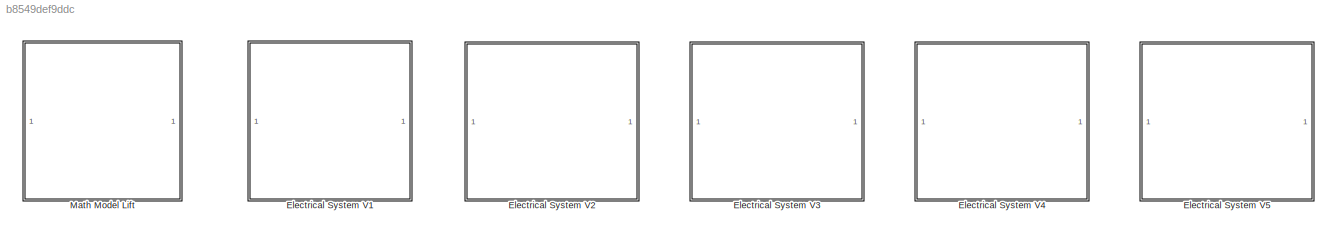
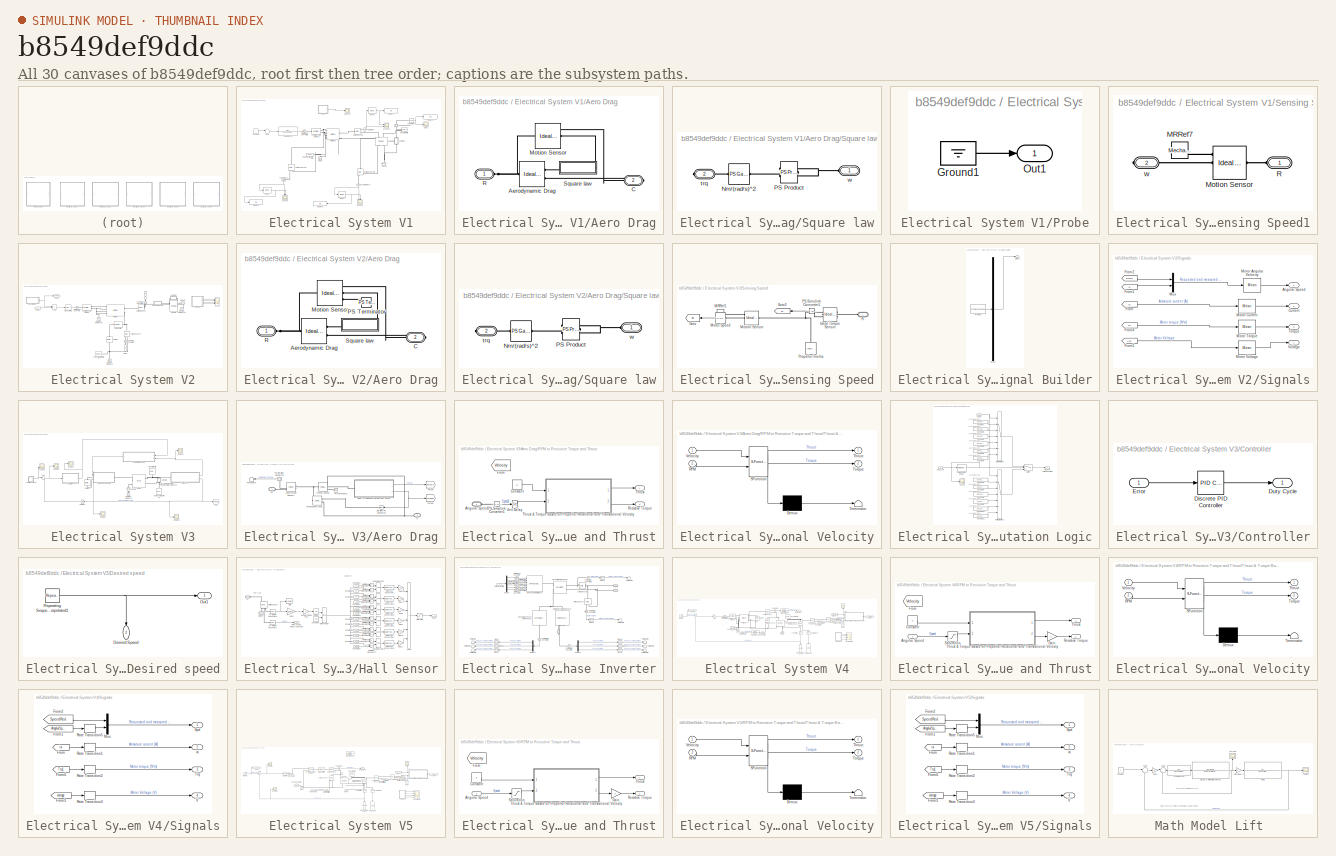
[diagram: thumbnail index - all 30 canvases of the model, root first then tree order]
MODEL slx_b8549def9ddc
KIND model
CONFIG AbsTol = auto
CONFIG EnableMultiTasking = off
CONFIG FixedStep = auto
CONFIG MaxStep = auto
CONFIG MinStep = auto
CONFIG RelTol = 1e-3
CONFIG SampleTimeConstraint = Unconstrained
CONFIG Solver = ode23t
CONFIG SolverName = ode23t
CONFIG StartTime = 0.0
CONFIG StopTime = 10
BLOCK [SubSystem] Electrical System V1
  Commented = on
  Ports = []
BLOCK [SubSystem] Electrical System V1/Aero Drag
  NameLocation = right
  Ports = [0, 0, 0, 0, 0, 1, 1]
BLOCK [Reference] Electrical System V1/Aero Drag/Aerodynamic Drag  REF=fl_lib/Mechanical/Mechanical Sources/Ideal Torque Source
  Ports = [0, 0, 0, 0, 0, 1, 2]
  SourceBlock = fl_lib/Mechanical/Mechanical Sources/Ideal Torque Source
  SourceType = Ideal Torque Source
BLOCK [PMIOPort] Electrical System V1/Aero Drag/C
  NameLocation = top
  Port = 2
  Side = Right
BLOCK [Reference] Electrical System V1/Aero Drag/Motion Sensor  REF=fl_lib/Mechanical/Mechanical Sensors/Ideal Rotational
Motion Sensor
  NameLocation = top
  Ports = [0, 0, 0, 0, 0, 1, 3]
  SourceBlock = fl_lib/Mechanical/Mechanical Sensors/Ideal Rotational\nMotion Sensor
  SourceType = Ideal Rotational\nMotion Sensor
BLOCK [PMIOPort] Electrical System V1/Aero Drag/R
  NameLocation = top
  Side = Left
BLOCK [SubSystem] Electrical System V1/Aero Drag/Square law
  NameLocation = top
  Ports = [0, 0, 0, 0, 0, 1, 1]
BLOCK [Reference] Electrical System V1/Aero Drag/Square law/Nm//(rad//s)^2  REF=fl_ps_legacy_lib/Legacy Physical
Signals/Functions/PS Gain
  NameLocation = top
  Ports = [0, 0, 0, 0, 0, 1, 1]
  SourceBlock = fl_ps_legacy_lib/Legacy Physical\nSignals/Functions/PS Gain
  SourceType = PS Gain
BLOCK [Reference] Electrical System V1/Aero Drag/Square law/PS Product  REF=fl_ps_legacy_lib/Legacy Physical
Signals/Functions/PS Product
  NameLocation = top
  Ports = [0, 0, 0, 0, 0, 2, 1]
  SourceBlock = fl_ps_legacy_lib/Legacy Physical\nSignals/Functions/PS Product
  SourceType = PS Product
BLOCK [PMIOPort] Electrical System V1/Aero Drag/Square law/trq
  Port = 2
  Side = Right
BLOCK [PMIOPort] Electrical System V1/Aero Drag/Square law/w
  NameLocation = top
  Side = Left
BLOCK [Constant] Electrical System V1/Constant4
  Value = 7
BLOCK [Reference] Electrical System V1/Controlled PWM Voltage3  REF=ee_lib/Integrated Circuits/Controlled PWM
Voltage
  Ports = [0, 0, 0, 0, 0, 1, 2]
  SourceBlock = ee_lib/Integrated Circuits/Controlled PWM\nVoltage
  SourceType = Controlled PWM\nVoltage
BLOCK [Reference] Electrical System V1/Current Sensor3  REF=fl_lib/Electrical/Electrical Sensors/Current Sensor
  NameLocation = top
  Ports = [0, 0, 0, 0, 0, 1, 2]
  SourceBlock = fl_lib/Electrical/Electrical Sensors/Current Sensor
  SourceType = Current Sensor
BLOCK [Reference] Electrical System V1/DC Motor3  REF=ee_lib/Electromechanical/Brushed Motors/DC Motor
  NameLocation = left
  Ports = [0, 0, 0, 0, 0, 2, 2]
  SourceBlock = ee_lib/Electromechanical/Brushed Motors/DC Motor
  SourceType = DC Motor
BLOCK [Display] Electrical System V1/Display5
  Decimation = 1
  Ports = [1]
BLOCK [Display] Electrical System V1/Display6
  Decimation = 1
  NameLocation = top
  Ports = [1]
BLOCK [Display] Electrical System V1/Display7
  Decimation = 1
  Ports = [1]
BLOCK [Display] Electrical System V1/Display8
  Decimation = 1
  Ports = [1]
BLOCK [Reference] Electrical System V1/ERef2  REF=fl_lib/Electrical/Electrical Elements/Electrical Reference
  NameLocation = left
  Ports = [0, 0, 0, 0, 0, 1]
  SourceBlock = fl_lib/Electrical/Electrical Elements/Electrical Reference
  SourceType = Electrical Reference
BLOCK [Reference] Electrical System V1/H-Bridge3  REF=ee_lib/Semiconductors &
Converters/Converters/H-Bridge
  Ports = [0, 0, 0, 0, 0, 4, 4]
  SourceBlock = ee_lib/Semiconductors &\nConverters/Converters/H-Bridge
  SourceType = H-Bridge
BLOCK [Reference] Electrical System V1/MRRef2  REF=fl_lib/Mechanical/Rotational Elements/Mechanical
Rotational Reference
  NameLocation = right
  Ports = [0, 0, 0, 0, 0, 1]
  SourceBlock = fl_lib/Mechanical/Rotational Elements/Mechanical\nRotational Reference
  SourceType = Mechanical\nRotational Reference
BLOCK [Reference] Electrical System V1/Mean3  REF=powerlib_meascontrol/Measurements/Mean
  Ports = [1, 1]
  SourceBlock = powerlib_meascontrol/Measurements/Mean
  SourceType = Mean
BLOCK [Reference] Electrical System V1/Mean4  REF=powerlib_meascontrol/Measurements/Mean
  Ports = [1, 1]
  SourceBlock = powerlib_meascontrol/Measurements/Mean
  SourceType = Mean
BLOCK [Reference] Electrical System V1/Mean5  REF=powerlib_meascontrol/Measurements/Mean
  Ports = [1, 1]
  SourceBlock = powerlib_meascontrol/Measurements/Mean
  SourceType = Mean
BLOCK [Reference] Electrical System V1/PS-Simulink10  REF=nesl_utility/PS-Simulink
Converter
  NameLocation = left
  Ports = [0, 1, 0, 0, 0, 1]
  SourceBlock = nesl_utility/PS-Simulink\nConverter
  SourceType = PS-Simulink\nConverter
BLOCK [Reference] Electrical System V1/PS-Simulink11  REF=nesl_utility/PS-Simulink
Converter
  NameLocation = left
  Ports = [0, 1, 0, 0, 0, 1]
  SourceBlock = nesl_utility/PS-Simulink\nConverter
  SourceType = PS-Simulink\nConverter
BLOCK [Reference] Electrical System V1/PS-Simulink8  REF=nesl_utility/PS-Simulink
Converter
  Ports = [0, 1, 0, 0, 0, 1]
  SourceBlock = nesl_utility/PS-Simulink\nConverter
  SourceType = PS-Simulink\nConverter
BLOCK [Reference] Electrical System V1/PS-Simulink9  REF=nesl_utility/PS-Simulink
Converter
  Ports = [0, 1, 0, 0, 0, 1]
  SourceBlock = nesl_utility/PS-Simulink\nConverter
  SourceType = PS-Simulink\nConverter
BLOCK [SubSystem] Electrical System V1/Probe
  Description = Replaced Block
  Ports = [0, 1]
BLOCK [Ground] Electrical System V1/Probe/Ground1
BLOCK [Outport] Electrical System V1/Probe/Out1
BLOCK [Reference] Electrical System V1/Propeller Inertia  REF=fl_lib/Mechanical/Rotational Elements/Inertia
  NameLocation = top
  Ports = [0, 0, 0, 0, 0, 1]
  SourceBlock = fl_lib/Mechanical/Rotational Elements/Inertia
  SourceType = Inertia
BLOCK [Scope] Electrical System V1/Scope10
  Floating = off
  NumInputPorts = 2
  Ports = [2]
  ScopeSpecificationString = Simulink.scopes.TimeScopeBlockCfg('CurrentConfiguration', extmgr.ConfigurationSet(extmgr.Configuration('Core','General UI',true),extmgr.Configuration('Core','Source UI',true),extmgr.Configuration('Sources','WiredSimulink',true,'DataLoggingVariableName','ScopeData9'),extmgr.Configuration('Visuals','Time Domain',true,'SerializedDisplays',{struct('MinYLimReal','-12.84725','MaxYLimReal','115.625','YLa...<+1425ch>
BLOCK [Scope] Electrical System V1/Scope11
  Floating = off
  NumInputPorts = 1
  Ports = [1]
  ScopeSpecificationString = Simulink.scopes.TimeScopeBlockCfg('CurrentConfiguration', extmgr.ConfigurationSet(extmgr.Configuration('Core','General UI',true),extmgr.Configuration('Core','Source UI',true),extmgr.Configuration('Sources','WiredSimulink',true,'DataLoggingVariableName','ScopeData12'),extmgr.Configuration('Visuals','Time Domain',true,'SerializedDisplays',{struct('MinYLimReal','5.199959','MaxYLimReal','5.200005','YL...<+1464ch>
BLOCK [Scope] Electrical System V1/Scope8
  Floating = off
  NameLocation = left
  NumInputPorts = 2
  Ports = [2]
  ScopeSpecificationString = Simulink.scopes.TimeScopeBlockCfg('CurrentConfiguration', extmgr.ConfigurationSet(extmgr.Configuration('Core','General UI',true),extmgr.Configuration('Core','Source UI',true),extmgr.Configuration('Sources','WiredSimulink',true,'DataLoggingVariableName','ScopeData10'),extmgr.Configuration('Visuals','Time Domain',true,'SerializedDisplays',{struct('MinYLimReal','-1.6962','MaxYLimReal','15.26577','YLa...<+1459ch>
BLOCK [Scope] Electrical System V1/Scope9
  Floating = off
  NameLocation = left
  NumInputPorts = 2
  Ports = [2]
  ScopeSpecificationString = Simulink.scopes.TimeScopeBlockCfg('CurrentConfiguration', extmgr.ConfigurationSet(extmgr.Configuration('Core','General UI',true),extmgr.Configuration('Core','Source UI',true),extmgr.Configuration('Sources','WiredSimulink',true,'DataLoggingVariableName','ScopeData11'),extmgr.Configuration('Visuals','Time Domain',true,'SerializedDisplays',{struct('MinYLimReal','-1.85','MaxYLimReal','16.65','YLabelRe...<+1442ch>
BLOCK [SubSystem] Electrical System V1/Sensing Speed1
  NameLocation = right
  Ports = [0, 0, 0, 0, 0, 1, 1]
BLOCK [Reference] Electrical System V1/Sensing Speed1/MRRef7  REF=fl_lib/Mechanical/Rotational Elements/Mechanical
Rotational Reference
  Ports = [0, 0, 0, 0, 0, 1]
  SourceBlock = fl_lib/Mechanical/Rotational Elements/Mechanical\nRotational Reference
  SourceType = Mechanical\nRotational Reference
BLOCK [Reference] Electrical System V1/Sensing Speed1/Motion Sensor  REF=fl_lib/Mechanical/Mechanical Sensors/Ideal Rotational
Motion Sensor
  Ports = [0, 0, 0, 0, 0, 1, 3]
  SourceBlock = fl_lib/Mechanical/Mechanical Sensors/Ideal Rotational\nMotion Sensor
  SourceType = Ideal Rotational\nMotion Sensor
BLOCK [PMIOPort] Electrical System V1/Sensing Speed1/R
  Side = Left
BLOCK [PMIOPort] Electrical System V1/Sensing Speed1/w
  NameLocation = top
  Port = 2
  Side = Right
BLOCK [Reference] Electrical System V1/Simulink-PS Converter2  REF=nesl_utility/Simulink-PS
Converter
  Ports = [1, 0, 0, 0, 0, 0, 1]
  SourceBlock = nesl_utility/Simulink-PS\nConverter
  SourceType = Simulink-PS\nConverter
BLOCK [Reference] Electrical System V1/Solver Configuration3  REF=nesl_utility/Solver
Configuration
  Ports = [0, 0, 0, 0, 0, 0, 1]
  SourceBlock = nesl_utility/Solver\nConfiguration
  SourceType = Solver\nConfiguration
BLOCK [Sum] Electrical System V1/Sum4
  Inputs = |+-
  Ports = [2, 1]
BLOCK [TransferFcn] Electrical System V1/Transfer Fcn1
  Denominator = [1 2*a*w0/J]
  Numerator = [Ke]
BLOCK [Reference] Electrical System V1/Voltage Sensor5  REF=fl_lib/Electrical/Electrical Sensors/Voltage Sensor
  NameLocation = right
  Ports = [0, 0, 0, 0, 0, 1, 2]
  SourceBlock = fl_lib/Electrical/Electrical Sensors/Voltage Sensor
  SourceType = Voltage Sensor
BLOCK [Reference] Electrical System V1/Voltage Sensor6  REF=fl_lib/Electrical/Electrical Sensors/Voltage Sensor
  NameLocation = right
  Ports = [0, 0, 0, 0, 0, 1, 2]
  SourceBlock = fl_lib/Electrical/Electrical Sensors/Voltage Sensor
  SourceType = Voltage Sensor
BLOCK [Scope] Electrical System V1/rad//s
  Floating = off
  NumInputPorts = 1
  Ports = [1]
  ScopeSpecificationString = Simulink.scopes.TimeScopeBlockCfg('CurrentConfiguration', extmgr.ConfigurationSet(extmgr.Configuration('Core','General UI',true),extmgr.Configuration('Core','Source UI',true),extmgr.Configuration('Sources','WiredSimulink',true,'DataLogging',true,'DataLoggingVariableName','ScopeData8','DataLoggingSaveFormat','StructureWithTime','DataLoggingDecimation','1','DataLoggingDecimateData',true),extmgr.Conf...<+1736ch>
BLOCK [SubSystem] Electrical System V2
  Commented = on
  Ports = []
BLOCK [Sum] Electrical System V2/Add
  IconShape = rectangular
  Inputs = +-
  Ports = [2, 1]
BLOCK [SubSystem] Electrical System V2/Aero Drag
  NameLocation = top
  Ports = [0, 0, 0, 0, 0, 1, 1]
BLOCK [Reference] Electrical System V2/Aero Drag/Aerodynamic Drag  REF=fl_lib/Mechanical/Mechanical Sources/Ideal Torque Source
  Ports = [0, 0, 0, 0, 0, 1, 2]
  SourceBlock = fl_lib/Mechanical/Mechanical Sources/Ideal Torque Source
  SourceType = Ideal Torque Source
BLOCK [PMIOPort] Electrical System V2/Aero Drag/C
  NameLocation = top
  Port = 2
  Side = Right
BLOCK [Reference] Electrical System V2/Aero Drag/Motion Sensor  REF=fl_lib/Mechanical/Mechanical Sensors/Ideal Rotational
Motion Sensor
  NameLocation = top
  Ports = [0, 0, 0, 0, 0, 1, 3]
  SourceBlock = fl_lib/Mechanical/Mechanical Sensors/Ideal Rotational\nMotion Sensor
  SourceType = Ideal Rotational\nMotion Sensor
BLOCK [Reference] Electrical System V2/Aero Drag/PS Terminator  REF=fl_lib/Physical Signals/Sinks/PS Terminator
  Ports = [0, 0, 0, 0, 0, 1]
  SourceBlock = fl_lib/Physical Signals/Sinks/PS Terminator
  SourceType = PS Terminator
BLOCK [PMIOPort] Electrical System V2/Aero Drag/R
  NameLocation = top
  Side = Left
BLOCK [SubSystem] Electrical System V2/Aero Drag/Square law
  NameLocation = top
  Ports = [0, 0, 0, 0, 0, 1, 1]
BLOCK [Reference] Electrical System V2/Aero Drag/Square law/Nm//(rad//s)^2  REF=fl_ps_legacy_lib/Legacy Physical
Signals/Functions/PS Gain
  NameLocation = top
  Ports = [0, 0, 0, 0, 0, 1, 1]
  SourceBlock = fl_ps_legacy_lib/Legacy Physical\nSignals/Functions/PS Gain
  SourceType = PS Gain
BLOCK [Reference] Electrical System V2/Aero Drag/Square law/PS Product  REF=fl_ps_legacy_lib/Legacy Physical
Signals/Functions/PS Product
  NameLocation = top
  Ports = [0, 0, 0, 0, 0, 2, 1]
  SourceBlock = fl_ps_legacy_lib/Legacy Physical\nSignals/Functions/PS Product
  SourceType = PS Product
BLOCK [PMIOPort] Electrical System V2/Aero Drag/Square law/trq
  Port = 2
  Side = Right
BLOCK [PMIOPort] Electrical System V2/Aero Drag/Square law/w
  NameLocation = top
  Side = Left
BLOCK [Reference] Electrical System V2/Battery1  REF=batteryecm_lib/Battery
  NameLocation = right
  Ports = [0, 0, 0, 0, 0, 1, 1]
  SourceBlock = batteryecm_lib/Battery
  SourceType = Battery
BLOCK [Reference] Electrical System V2/Controlled PWM Voltage  REF=ee_lib/Integrated Circuits/Controlled PWM
Voltage
  Ports = [0, 0, 0, 0, 0, 1, 2]
  SourceBlock = ee_lib/Integrated Circuits/Controlled PWM\nVoltage
  SourceType = Controlled PWM\nVoltage
BLOCK [Reference] Electrical System V2/Current Limiter  REF=ee_lib/Semiconductors &
Converters/Current Limiter
  Ports = [0, 0, 0, 0, 0, 1, 1]
  SourceBlock = ee_lib/Semiconductors &\nConverters/Current Limiter
  SourceType = Current Limiter
BLOCK [Reference] Electrical System V2/Current Sensor  REF=fl_lib/Electrical/Electrical Sensors/Current Sensor
  Ports = [0, 0, 0, 0, 0, 1, 2]
  SourceBlock = fl_lib/Electrical/Electrical Sensors/Current Sensor
  SourceType = Current Sensor
BLOCK [Reference] Electrical System V2/DC Motor  REF=ee_lib/Electromechanical/Brushed Motors/DC Motor
  Ports = [0, 0, 0, 0, 0, 2, 2]
  SourceBlock = ee_lib/Electromechanical/Brushed Motors/DC Motor
  SourceType = DC Motor
BLOCK [Reference] Electrical System V2/Electrical Reference  REF=fl_lib/Electrical/Electrical Elements/Electrical Reference
  Ports = [0, 0, 0, 0, 0, 1]
  SourceBlock = fl_lib/Electrical/Electrical Elements/Electrical Reference
  SourceType = Electrical Reference
BLOCK [Reference] Electrical System V2/Electrical Reference1  REF=fl_lib/Electrical/Electrical Elements/Electrical Reference
  NameLocation = right
  Ports = [0, 0, 0, 0, 0, 1]
  SourceBlock = fl_lib/Electrical/Electrical Elements/Electrical Reference
  SourceType = Electrical Reference
BLOCK [Reference] Electrical System V2/Electrical Reference2  REF=fl_lib/Electrical/Electrical Elements/Electrical Reference
  Ports = [0, 0, 0, 0, 0, 1]
  SourceBlock = fl_lib/Electrical/Electrical Elements/Electrical Reference
  SourceType = Electrical Reference
BLOCK [From] Electrical System V2/From1
  GotoTag = w
  TagVisibility = global
BLOCK [Goto] Electrical System V2/Goto
  GotoTag = ia
  NameLocation = right
  TagVisibility = global
BLOCK [Goto] Electrical System V2/Goto1
  GotoTag = wReq
  TagVisibility = global
BLOCK [Goto] Electrical System V2/Goto2
  GotoTag = Vdc
  NameLocation = left
  TagVisibility = global
BLOCK [Reference] Electrical System V2/H-Bridge  REF=ee_lib/Semiconductors &
Converters/Converters/H-Bridge
  Ports = [0, 0, 0, 0, 0, 4, 2]
  SourceBlock = ee_lib/Semiconductors &\nConverters/Converters/H-Bridge
  SourceType = H-Bridge
BLOCK [Reference] Electrical System V2/MRRef2  REF=fl_lib/Mechanical/Rotational Elements/Mechanical
Rotational Reference
  NameLocation = top
  Ports = [0, 0, 0, 0, 0, 1]
  SourceBlock = fl_lib/Mechanical/Rotational Elements/Mechanical\nRotational Reference
  SourceType = Mechanical\nRotational Reference
BLOCK [Reference] Electrical System V2/PID Controller1  REF=simulink/Continuous/PID Controller
  Ports = [1, 1]
  SourceBlock = simulink/Continuous/PID Controller
  SourceType = PID 1dof
BLOCK [Reference] Electrical System V2/PS-Simulink Converter  REF=nesl_utility/PS-Simulink
Converter
  NameLocation = right
  Ports = [0, 1, 0, 0, 0, 1]
  SourceBlock = nesl_utility/PS-Simulink\nConverter
  SourceType = PS-Simulink\nConverter
BLOCK [Reference] Electrical System V2/PS-Simulink Converter2  REF=nesl_utility/PS-Simulink
Converter
  NameLocation = left
  Ports = [0, 1, 0, 0, 0, 1]
  SourceBlock = nesl_utility/PS-Simulink\nConverter
  SourceType = PS-Simulink\nConverter
BLOCK [Scope] Electrical System V2/Scope
  Floating = off
  NumInputPorts = 4
  Ports = [4]
  ScopeSpecificationString = Simulink.scopes.TimeScopeBlockCfg('CurrentConfiguration', extmgr.ConfigurationSet(extmgr.Configuration('Core','General UI',true),extmgr.Configuration('Core','Source UI',true),extmgr.Configuration('Sources','WiredSimulink',true,'DataLoggingVariableName','ScopeData1'),extmgr.Configuration('Visuals','Time Domain',true,'SerializedDisplays',{struct('MinYLimReal','-987.43859','MaxYLimReal','8886.94729',...<+3788ch>
BLOCK [SubSystem] Electrical System V2/Sensing Speed
  NameLocation = top
  Ports = [0, 0, 0, 0, 0, 1]
BLOCK [Goto] Electrical System V2/Sensing Speed/Goto
  GotoTag = w
  TagVisibility = global
BLOCK [Goto] Electrical System V2/Sensing Speed/Goto3
  GotoTag = Tq
  NameLocation = top
  TagVisibility = global
BLOCK [Reference] Electrical System V2/Sensing Speed/Ideal Torque Sensor  REF=fl_lib/Mechanical/Mechanical Sensors/Ideal Torque Sensor
  NameLocation = top
  Ports = [0, 0, 0, 0, 0, 1, 2]
  SourceBlock = fl_lib/Mechanical/Mechanical Sensors/Ideal Torque Sensor
  SourceType = Ideal Torque Sensor
BLOCK [Reference] Electrical System V2/Sensing Speed/MRRef1  REF=fl_lib/Mechanical/Rotational Elements/Mechanical
Rotational Reference
  Ports = [0, 0, 0, 0, 0, 1]
  SourceBlock = fl_lib/Mechanical/Rotational Elements/Mechanical\nRotational Reference
  SourceType = Mechanical\nRotational Reference
BLOCK [Reference] Electrical System V2/Sensing Speed/Motion Sensor  REF=fl_lib/Mechanical/Mechanical Sensors/Ideal Rotational
Motion Sensor
  Ports = [0, 0, 0, 0, 0, 1, 3]
  SourceBlock = fl_lib/Mechanical/Mechanical Sensors/Ideal Rotational\nMotion Sensor
  SourceType = Ideal Rotational\nMotion Sensor
BLOCK [Reference] Electrical System V2/Sensing Speed/Motor Speed  REF=nesl_utility/PS-Simulink
Converter
  Ports = [0, 1, 0, 0, 0, 1]
  SourceBlock = nesl_utility/PS-Simulink\nConverter
  SourceType = PS-Simulink\nConverter
BLOCK [Reference] Electrical System V2/Sensing Speed/PS-Simulink Converter1  REF=nesl_utility/PS-Simulink
Converter
  NameLocation = top
  Ports = [0, 1, 0, 0, 0, 1]
  SourceBlock = nesl_utility/PS-Simulink\nConverter
  SourceType = PS-Simulink\nConverter
BLOCK [Reference] Electrical System V2/Sensing Speed/Propeller Inertia  REF=fl_lib/Mechanical/Rotational Elements/Inertia
  NameLocation = left
  Ports = [0, 0, 0, 0, 0, 1]
  SourceBlock = fl_lib/Mechanical/Rotational Elements/Inertia
  SourceType = Inertia
BLOCK [PMIOPort] Electrical System V2/Sensing Speed/R
  Side = Left
BLOCK [SubSystem] Electrical System V2/Signal Builder
  ClipboardFcn = sigbuilder_block('clipboard');
  CloseFcn = sigbuilder_block('close');
  ContinueFcn = sigbuilder_block('continue');
  CopyFcn = sigbuilder_block('copy');
  DeleteFcn = sigbuilder_block('delete');
  LoadFcn = sigbuilder_block('load');
  MaskHideContents = on
  ModelCloseFcn = sigbuilder_block('modelClose');
  NameChangeFcn = sigbuilder_block('namechange');
  OpenFcn = sigbuilder_block('open',[326.4 95.4 550.8 279 ]);
  PauseFcn = sigbuilder_block('pause');
  Ports = [0, 1]
  PreSaveFcn = sigbuilder_block('preSave');
  StartFcn = sigbuilder_block('start');
  StopFcn = sigbuilder_block('stop');
  Tag = STV Subsys
BLOCK [Demux] Electrical System V2/Signal Builder/Demux
  DisplayOption = none
  Outputs = 1
  Ports = [1, 1]
  Tag = STV Demux
BLOCK [FromWorkspace] Electrical System V2/Signal Builder/FromWs
  Tag = STV FromWs
  VariableName = tuvar
BLOCK [Outport] Electrical System V2/Signal Builder/Motor 1
  Tag = STV Outport
BLOCK [SubSystem] Electrical System V2/Signals
  Ports = [0, 4]
BLOCK [Outport] Electrical System V2/Signals/Angular Speed
  VectorParamsAs1DForOutWhenUnconnected = off
BLOCK [Outport] Electrical System V2/Signals/Current
  Port = 2
  VectorParamsAs1DForOutWhenUnconnected = off
BLOCK [From] Electrical System V2/Signals/From
  GotoTag = ia
  TagVisibility = global
BLOCK [From] Electrical System V2/Signals/From1
  GotoTag = w
  TagVisibility = global
BLOCK [From] Electrical System V2/Signals/From2
  GotoTag = wReq
  TagVisibility = global
BLOCK [From] Electrical System V2/Signals/From4
  GotoTag = Tq
  TagVisibility = global
BLOCK [From] Electrical System V2/Signals/From5
  GotoTag = Vdc
  TagVisibility = global
BLOCK [Reference] Electrical System V2/Signals/Motor Angular Velocity  REF=powerlib_meascontrol/Measurements/Mean
  Ports = [1, 1]
  SourceBlock = powerlib_meascontrol/Measurements/Mean
  SourceType = Mean
BLOCK [Reference] Electrical System V2/Signals/Motor Current  REF=powerlib_meascontrol/Measurements/Mean
  Ports = [1, 1]
  SourceBlock = powerlib_meascontrol/Measurements/Mean
  SourceType = Mean
BLOCK [Reference] Electrical System V2/Signals/Motor Torque  REF=powerlib_meascontrol/Measurements/Mean
  Ports = [1, 1]
  SourceBlock = powerlib_meascontrol/Measurements/Mean
  SourceType = Mean
BLOCK [Reference] Electrical System V2/Signals/Motor Voltage  REF=powerlib_meascontrol/Measurements/Mean
  Ports = [1, 1]
  SourceBlock = powerlib_meascontrol/Measurements/Mean
  SourceType = Mean
BLOCK [Mux] Electrical System V2/Signals/Mux
  DisplayOption = bar
  Inputs = 2
  Ports = [2, 1]
BLOCK [Outport] Electrical System V2/Signals/Torque
  Port = 3
  VectorParamsAs1DForOutWhenUnconnected = off
BLOCK [Outport] Electrical System V2/Signals/Voltage
  Port = 4
  VectorParamsAs1DForOutWhenUnconnected = off
BLOCK [Reference] Electrical System V2/Simulink-PS Converter  REF=nesl_utility/Simulink-PS
Converter
  Ports = [1, 0, 0, 0, 0, 0, 1]
  SourceBlock = nesl_utility/Simulink-PS\nConverter
  SourceType = Simulink-PS\nConverter
BLOCK [Reference] Electrical System V2/Solver Configuration  REF=nesl_utility/Solver
Configuration
  Ports = [0, 0, 0, 0, 0, 0, 1]
  SourceBlock = nesl_utility/Solver\nConfiguration
  SourceType = Solver\nConfiguration
BLOCK [Reference] Electrical System V2/Voltage Sensor  REF=fl_lib/Electrical/Electrical Sensors/Voltage Sensor
  NameLocation = right
  Ports = [0, 0, 0, 0, 0, 1, 2]
  SourceBlock = fl_lib/Electrical/Electrical Sensors/Voltage Sensor
  SourceType = Voltage Sensor
BLOCK [SubSystem] Electrical System V3
  Commented = on
  Ports = []
BLOCK [SubSystem] Electrical System V3/Aero Drag
  NameLocation = right
  Ports = [0, 0, 0, 0, 0, 1, 1]
BLOCK [Reference] Electrical System V3/Aero Drag/Aerodynamic Drag  REF=fl_lib/Mechanical/Mechanical Sources/Ideal Torque Source
  Ports = [0, 0, 0, 0, 0, 1, 2]
  SourceBlock = fl_lib/Mechanical/Mechanical Sources/Ideal Torque Source
  SourceType = Ideal Torque Source
BLOCK [PMIOPort] Electrical System V3/Aero Drag/C
  NameLocation = top
  Port = 2
  Side = Right
BLOCK [Reference] Electrical System V3/Aero Drag/Ideal Torque Sensor1  REF=fl_lib/Mechanical/Mechanical Sensors/Ideal Torque Sensor
  NameLocation = top
  Ports = [0, 0, 0, 0, 0, 1, 2]
  SourceBlock = fl_lib/Mechanical/Mechanical Sensors/Ideal Torque Sensor
  SourceType = Ideal Torque Sensor
BLOCK [Reference] Electrical System V3/Aero Drag/Motion Sensor  REF=fl_lib/Mechanical/Mechanical Sensors/Ideal Rotational
Motion Sensor
  NameLocation = top
  Ports = [0, 0, 0, 0, 0, 1, 3]
  SourceBlock = fl_lib/Mechanical/Mechanical Sensors/Ideal Rotational\nMotion Sensor
  SourceType = Ideal Rotational\nMotion Sensor
BLOCK [Reference] Electrical System V3/Aero Drag/PS Terminator  REF=fl_lib/Physical Signals/Sinks/PS Terminator
  Ports = [0, 0, 0, 0, 0, 1]
  SourceBlock = fl_lib/Physical Signals/Sinks/PS Terminator
  SourceType = PS Terminator
BLOCK [Reference] Electrical System V3/Aero Drag/PS-Simulink Converter  REF=nesl_utility/PS-Simulink
Converter
  NameLocation = top
  Ports = [0, 1, 0, 0, 0, 1]
  SourceBlock = nesl_utility/PS-Simulink\nConverter
  SourceType = PS-Simulink\nConverter
BLOCK [PMIOPort] Electrical System V3/Aero Drag/R
  NameLocation = top
  Side = Left
BLOCK [SubSystem] Electrical System V3/Aero Drag/RPM to Resistive Torque and Thrust
  Ports = [0, 2, 0, 0, 0, 1]
BLOCK [PMIOPort] Electrical System V3/Aero Drag/RPM to Resistive Torque and Thrust/Angular Speed
  Side = Left
BLOCK [Constant] Electrical System V3/Aero Drag/RPM to Resistive Torque and Thrust/Constant
  Value = 0
BLOCK [From] Electrical System V3/Aero Drag/RPM to Resistive Torque and Thrust/From
  Commented = on
  GotoTag = Velocity
  TagVisibility = global
BLOCK [Reference] Electrical System V3/Aero Drag/RPM to Resistive Torque and Thrust/PS-Simulink Converter1  REF=nesl_utility/PS-Simulink
Converter
  NameLocation = right
  Ports = [0, 1, 0, 0, 0, 1]
  SourceBlock = nesl_utility/PS-Simulink\nConverter
  SourceType = PS-Simulink\nConverter
BLOCK [Outport] Electrical System V3/Aero Drag/RPM to Resistive Torque and Thrust/Resistive Torque
  Port = 2
BLOCK [Outport] Electrical System V3/Aero Drag/RPM to Resistive Torque and Thrust/Thrust
BLOCK [SubSystem] Electrical System V3/Aero Drag/RPM to Resistive Torque and Thrust/Thrust & Torque Based on Propeller Rotational and Translational Velocity
  ErrorFcn = Stateflow.Translate.translate
  PermitHierarchicalResolution = ExplicitOnly
  Ports = [2, 2]
  SFBlockType = MATLAB Function
  TreatAsAtomicUnit = on
BLOCK [Demux] Electrical System V3/Aero Drag/RPM to Resistive Torque and Thrust/Thrust & Torque Based on Propeller Rotational and Translational Velocity/ Demux 
  Outputs = 1
  Ports = [1, 1]
BLOCK [S-Function] Electrical System V3/Aero Drag/RPM to Resistive Torque and Thrust/Thrust & Torque Based on Propeller Rotational and Translational Velocity/ SFunction 
  EnableBusSupport = off
  FunctionName = sf_sfun
  PortCounts = [2 3]
  Ports = [2, 3]
  SFcnIsStateOwnerBlock = off
  SFunctionDeploymentMode = off
  Tag = Stateflow S-Function 1
BLOCK [Terminator] Electrical System V3/Aero Drag/RPM to Resistive Torque and Thrust/Thrust & Torque Based on Propeller Rotational and Translational Velocity/ Terminator 
BLOCK [Inport] Electrical System V3/Aero Drag/RPM to Resistive Torque and Thrust/Thrust & Torque Based on Propeller Rotational and Translational Velocity/RPM
  Port = 2
BLOCK [Outport] Electrical System V3/Aero Drag/RPM to Resistive Torque and Thrust/Thrust & Torque Based on Propeller Rotational and Translational Velocity/Thrust
BLOCK [Outport] Electrical System V3/Aero Drag/RPM to Resistive Torque and Thrust/Thrust & Torque Based on Propeller Rotational and Translational Velocity/Torque
  Port = 2
BLOCK [Inport] Electrical System V3/Aero Drag/RPM to Resistive Torque and Thrust/Thrust & Torque Based on Propeller Rotational and Translational Velocity/Velocity
BLOCK [UnitDelay] Electrical System V3/Aero Drag/RPM to Resistive Torque and Thrust/Unit Delay
  HasFrameUpgradeWarning = on
  NameLocation = top
  SampleTime = -1
BLOCK [Reference] Electrical System V3/Aero Drag/Simulink-PS Converter  REF=nesl_utility/Simulink-PS
Converter
  NameLocation = top
  Ports = [1, 0, 0, 0, 0, 0, 1]
  SourceBlock = nesl_utility/Simulink-PS\nConverter
  SourceType = Simulink-PS\nConverter
BLOCK [Terminator] Electrical System V3/Aero Drag/Terminator
  NameLocation = top
BLOCK [Goto] Electrical System V3/Aero Drag/Thrust
  GotoTag = Thrust1
  TagVisibility = global
BLOCK [Goto] Electrical System V3/Aero Drag/Torque
  GotoTag = Torque1
  TagVisibility = global
BLOCK [Reference] Electrical System V3/BLDC  REF=ee_lib/Electromechanical/Permanent Magnet/BLDC
  Ports = [0, 0, 0, 0, 0, 1, 2]
  SourceBlock = ee_lib/Electromechanical/Permanent Magnet/BLDC
  SourceType = BLDC
BLOCK [Reference] Electrical System V3/Battery1  REF=batteryecm_lib/Battery
  NameLocation = right
  Ports = [0, 0, 0, 0, 0, 1, 1]
  SourceBlock = batteryecm_lib/Battery
  SourceType = Battery
BLOCK [SubSystem] Electrical System V3/Commutation Logic
  NameLocation = top
  Ports = [2, 1]
BLOCK [Outport] Electrical System V3/Commutation Logic/  MOSFET Switching Pattern
  VectorParamsAs1DForOutWhenUnconnected = off
BLOCK [Constant] Electrical System V3/Commutation Logic/Constant
  Value = [1 0 0 0 0 1]
BLOCK [Constant] Electrical System V3/Commutation Logic/Constant1
  Value = [0 0 1 0 0 1]
BLOCK [Constant] Electrical System V3/Commutation Logic/Constant10
  Value = [0 0 1 0 0 1]
BLOCK [Constant] Electrical System V3/Commutation Logic/Constant11
  Value = [0 1 1 0 0 0]
BLOCK [Constant] Electrical System V3/Commutation Logic/Constant2
  Value = [0 1 1 0 0 0]
BLOCK [Constant] Electrical System V3/Commutation Logic/Constant3
  Value = [0 1 0 0 1 0]
BLOCK [Constant] Electrical System V3/Commutation Logic/Constant4
  Value = [0 1 0 0 1 0]
BLOCK [Constant] Electrical System V3/Commutation Logic/Constant5
  Value = [0 0 0 1 1 0]
BLOCK [Constant] Electrical System V3/Commutation Logic/Constant6
  Value = [1 0 0 1 0 0]
BLOCK [Constant] Electrical System V3/Commutation Logic/Constant7
  Value = [0 0 0 1 1 0]
BLOCK [Constant] Electrical System V3/Commutation Logic/Constant8
  Value = [1 0 0 1 0 0]
BLOCK [Constant] Electrical System V3/Commutation Logic/Constant9
  Value = [1 0 0 0 0 1]
BLOCK [Inport] Electrical System V3/Commutation Logic/Duty Cycle
BLOCK [MultiPortSwitch] Electrical System V3/Commutation Logic/Multiport Switch
  InputSameDT = off
  Inputs = 6
  Ports = [7, 1]
  SaturateOnIntegerOverflow = off
BLOCK [MultiPortSwitch] Electrical System V3/Commutation Logic/Multiport Switch1
  InputSameDT = off
  Inputs = 6
  Ports = [7, 1]
  SaturateOnIntegerOverflow = off
BLOCK [Reference] Electrical System V3/Commutation Logic/PWM Generator (DC-DC)  REF=powerlib_meascontrol/Pulse & Signal Generators/PWM Generator (DC-DC)
  Ports = [1, 1]
  SourceBlock = powerlib_meascontrol/Pulse & Signal Generators/PWM Generator (DC-DC)
  SourceType = PWM Generator (DC-DC)
BLOCK [Scope] Electrical System V3/Commutation Logic/Scope
  Floating = off
  NumInputPorts = 1
  Ports = [1]
  ScopeSpecificationString = Simulink.scopes.TimeScopeBlockCfg('CurrentConfiguration', extmgr.ConfigurationSet(extmgr.Configuration('Core','General UI',true),extmgr.Configuration('Core','Source UI',true),extmgr.Configuration('Sources','WiredSimulink',true,'DataLoggingVariableName','ScopeData8'),extmgr.Configuration('Visuals','Time Domain',true,'SerializedDisplays',{struct('MinYLimReal','-0.125','MaxYLimReal','1.125','YLabelRe...<+1412ch>
BLOCK [Inport] Electrical System V3/Commutation Logic/Sector
  NameLocation = top
  Port = 2
BLOCK [Switch] Electrical System V3/Commutation Logic/Switch
  Criteria = u2 > Threshold
  InputSameDT = off
  SaturateOnIntegerOverflow = off
  Threshold = 0.5
BLOCK [SubSystem] Electrical System V3/Controller
  Ports = [1, 1]
BLOCK [Reference] Electrical System V3/Controller/Discrete PID Controller  REF=simulink/Continuous/PID Controller
  Ports = [1, 1]
  SourceBlock = simulink/Continuous/PID Controller
  SourceType = PID 1dof
BLOCK [Outport] Electrical System V3/Controller/Duty Cycle
BLOCK [Inport] Electrical System V3/Controller/Error
BLOCK [SubSystem] Electrical System V3/Desired speed
  Ports = [0, 2]
  ShowPortLabels = none
BLOCK [Outport] Electrical System V3/Desired speed/Desired Speed
  NameLocation = left
  Port = 2
BLOCK [Outport] Electrical System V3/Desired speed/Out1
BLOCK [Reference] Electrical System V3/Desired speed/Repeating Sequence Interpolated1  REF=simulink/Sources/Repeating
Sequence
Interpolated
  Ports = [0, 1]
  SourceBlock = simulink/Sources/Repeating\nSequence\nInterpolated
  SourceType = Repeating Sequence Interpolated
BLOCK [Reference] Electrical System V3/Electrical Reference  REF=fl_lib/Electrical/Electrical Elements/Electrical Reference
  NameLocation = right
  Ports = [0, 0, 0, 0, 0, 1]
  SourceBlock = fl_lib/Electrical/Electrical Elements/Electrical Reference
  SourceType = Electrical Reference
BLOCK [Goto] Electrical System V3/Goto
  GotoTag = RPM1
  TagVisibility = global
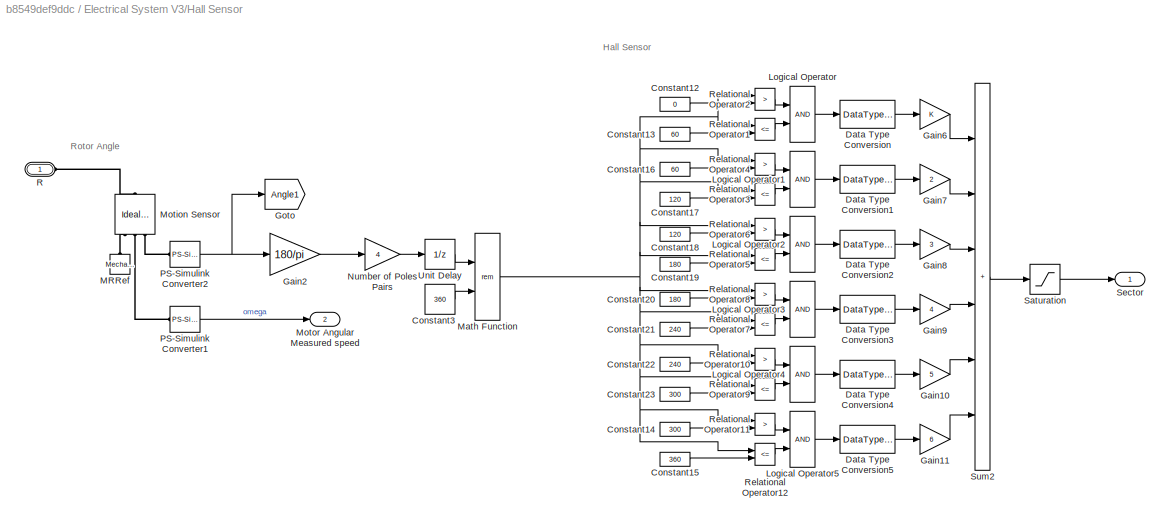
BLOCK [SubSystem] Electrical System V3/Hall Sensor
  Ports = [0, 2, 0, 0, 0, 1]
BLOCK [Constant] Electrical System V3/Hall Sensor/Constant12
  Value = 0
BLOCK [Constant] Electrical System V3/Hall Sensor/Constant13
  Value = 60
BLOCK [Constant] Electrical System V3/Hall Sensor/Constant14
  Value = 300
BLOCK [Constant] Electrical System V3/Hall Sensor/Constant15
  Value = 360
BLOCK [Constant] Electrical System V3/Hall Sensor/Constant16
  Value = 60
BLOCK [Constant] Electrical System V3/Hall Sensor/Constant17
  Value = 120
BLOCK [Constant] Electrical System V3/Hall Sensor/Constant18
  Value = 120
BLOCK [Constant] Electrical System V3/Hall Sensor/Constant19
  Value = 180
BLOCK [Constant] Electrical System V3/Hall Sensor/Constant20
  Value = 180
BLOCK [Constant] Electrical System V3/Hall Sensor/Constant21
  Value = 240
BLOCK [Constant] Electrical System V3/Hall Sensor/Constant22
  Value = 240
BLOCK [Constant] Electrical System V3/Hall Sensor/Constant23
  Value = 300
BLOCK [Constant] Electrical System V3/Hall Sensor/Constant3
  Value = 360
BLOCK [DataTypeConversion] Electrical System V3/Hall Sensor/Data Type Conversion
BLOCK [DataTypeConversion] Electrical System V3/Hall Sensor/Data Type Conversion1
BLOCK [DataTypeConversion] Electrical System V3/Hall Sensor/Data Type Conversion2
BLOCK [DataTypeConversion] Electrical System V3/Hall Sensor/Data Type Conversion3
BLOCK [DataTypeConversion] Electrical System V3/Hall Sensor/Data Type Conversion4
BLOCK [DataTypeConversion] Electrical System V3/Hall Sensor/Data Type Conversion5
BLOCK [Gain] Electrical System V3/Hall Sensor/Gain10
  Gain = 5
  OutDataTypeStr = Inherit: Same as input
  ParamDataTypeStr = Inherit: Same as input
  SaturateOnIntegerOverflow = on
BLOCK [Gain] Electrical System V3/Hall Sensor/Gain11
  Gain = 6
  OutDataTypeStr = Inherit: Same as input
  ParamDataTypeStr = Inherit: Same as input
  SaturateOnIntegerOverflow = on
BLOCK [Gain] Electrical System V3/Hall Sensor/Gain2
  Gain = 180/pi
BLOCK [Gain] Electrical System V3/Hall Sensor/Gain6
  OutDataTypeStr = Inherit: Same as input
  ParamDataTypeStr = Inherit: Same as input
  SaturateOnIntegerOverflow = on
BLOCK [Gain] Electrical System V3/Hall Sensor/Gain7
  Gain = 2
  OutDataTypeStr = Inherit: Same as input
  ParamDataTypeStr = Inherit: Same as input
  SaturateOnIntegerOverflow = on
BLOCK [Gain] Electrical System V3/Hall Sensor/Gain8
  Gain = 3
  OutDataTypeStr = Inherit: Same as input
  ParamDataTypeStr = Inherit: Same as input
  SaturateOnIntegerOverflow = on
BLOCK [Gain] Electrical System V3/Hall Sensor/Gain9
  Gain = 4
  OutDataTypeStr = Inherit: Same as input
  ParamDataTypeStr = Inherit: Same as input
  SaturateOnIntegerOverflow = on
BLOCK [Goto] Electrical System V3/Hall Sensor/Goto
  GotoTag = Angle1
  TagVisibility = global
BLOCK [Logic] Electrical System V3/Hall Sensor/Logical Operator
  Ports = [2, 1]
BLOCK [Logic] Electrical System V3/Hall Sensor/Logical Operator1
  Ports = [2, 1]
BLOCK [Logic] Electrical System V3/Hall Sensor/Logical Operator2
  Ports = [2, 1]
BLOCK [Logic] Electrical System V3/Hall Sensor/Logical Operator3
  Ports = [2, 1]
BLOCK [Logic] Electrical System V3/Hall Sensor/Logical Operator4
  Ports = [2, 1]
BLOCK [Logic] Electrical System V3/Hall Sensor/Logical Operator5
  Ports = [2, 1]
BLOCK [Reference] Electrical System V3/Hall Sensor/MRRef  REF=fl_lib/Mechanical/Rotational Elements/Mechanical
Rotational Reference
  NameLocation = left
  Ports = [0, 0, 0, 0, 0, 1]
  SourceBlock = fl_lib/Mechanical/Rotational Elements/Mechanical\nRotational Reference
  SourceType = Mechanical\nRotational Reference
BLOCK [Math] Electrical System V3/Hall Sensor/Math Function
  Operator = rem
  Ports = [2, 1]
  SignedPower = on
BLOCK [Reference] Electrical System V3/Hall Sensor/Motion Sensor  REF=fl_lib/Mechanical/Mechanical Sensors/Ideal Rotational
Motion Sensor
  NameLocation = right
  Ports = [0, 0, 0, 0, 0, 1, 3]
  SourceBlock = fl_lib/Mechanical/Mechanical Sensors/Ideal Rotational\nMotion Sensor
  SourceType = Ideal Rotational\nMotion Sensor
BLOCK [Outport] Electrical System V3/Hall Sensor/Motor Angular Measured speed
  Port = 2
BLOCK [Gain] Electrical System V3/Hall Sensor/Number of Poles Pairs
  Gain = 4
  NameLocation = top
BLOCK [Reference] Electrical System V3/Hall Sensor/PS-Simulink Converter1  REF=nesl_utility/PS-Simulink
Converter
  Ports = [0, 1, 0, 0, 0, 1]
  SourceBlock = nesl_utility/PS-Simulink\nConverter
  SourceType = PS-Simulink\nConverter
BLOCK [Reference] Electrical System V3/Hall Sensor/PS-Simulink Converter2  REF=nesl_utility/PS-Simulink
Converter
  Ports = [0, 1, 0, 0, 0, 1]
  SourceBlock = nesl_utility/PS-Simulink\nConverter
  SourceType = PS-Simulink\nConverter
BLOCK [PMIOPort] Electrical System V3/Hall Sensor/R
  NameLocation = top
  Side = Left
BLOCK [RelationalOperator] Electrical System V3/Hall Sensor/Relational Operator1
  Operator = <=
  Ports = [2, 1]
BLOCK [RelationalOperator] Electrical System V3/Hall Sensor/Relational Operator10
  Operator = >
  Ports = [2, 1]
BLOCK [RelationalOperator] Electrical System V3/Hall Sensor/Relational Operator11
  Operator = >
  Ports = [2, 1]
BLOCK [RelationalOperator] Electrical System V3/Hall Sensor/Relational Operator12
  Operator = <=
  Ports = [2, 1]
BLOCK [RelationalOperator] Electrical System V3/Hall Sensor/Relational Operator2
  Operator = >
  Ports = [2, 1]
BLOCK [RelationalOperator] Electrical System V3/Hall Sensor/Relational Operator3
  Operator = <=
  Ports = [2, 1]
BLOCK [RelationalOperator] Electrical System V3/Hall Sensor/Relational Operator4
  Operator = >
  Ports = [2, 1]
BLOCK [RelationalOperator] Electrical System V3/Hall Sensor/Relational Operator5
  Operator = <=
  Ports = [2, 1]
BLOCK [RelationalOperator] Electrical System V3/Hall Sensor/Relational Operator6
  Operator = >
  Ports = [2, 1]
BLOCK [RelationalOperator] Electrical System V3/Hall Sensor/Relational Operator7
  Operator = <=
  Ports = [2, 1]
BLOCK [RelationalOperator] Electrical System V3/Hall Sensor/Relational Operator8
  Operator = >
  Ports = [2, 1]
BLOCK [RelationalOperator] Electrical System V3/Hall Sensor/Relational Operator9
  Operator = <=
  Ports = [2, 1]
BLOCK [Saturate] Electrical System V3/Hall Sensor/Saturation
  LowerLimit = 1
  UpperLimit = 6
BLOCK [Outport] Electrical System V3/Hall Sensor/Sector
  NameLocation = top
BLOCK [Sum] Electrical System V3/Hall Sensor/Sum2
  IconShape = rectangular
  InputSameDT = on
  Inputs = ++++++
  OutDataTypeStr = Inherit: Same as first input
  Ports = [6, 1]
  SaturateOnIntegerOverflow = on
BLOCK [UnitDelay] Electrical System V3/Hall Sensor/Unit Delay
  HasFrameUpgradeWarning = on
  SampleTime = Ts_motor
BLOCK [Reference] Electrical System V3/Mechanical Rotational Reference1  REF=fl_lib/Mechanical/Rotational Elements/Mechanical
Rotational Reference
  NameLocation = top
  Ports = [0, 0, 0, 0, 0, 1]
  SourceBlock = fl_lib/Mechanical/Rotational Elements/Mechanical\nRotational Reference
  SourceType = Mechanical\nRotational Reference
BLOCK [Reference] Electrical System V3/Propeller Inertia  REF=fl_lib/Mechanical/Rotational Elements/Inertia
  NameLocation = right
  Ports = [0, 0, 0, 0, 0, 1]
  SourceBlock = fl_lib/Mechanical/Rotational Elements/Inertia
  SourceType = Inertia
BLOCK [Reference] Electrical System V3/Resistor  REF=fl_lib/Electrical/Electrical Elements/Resistor
  NameLocation = left
  Ports = [0, 0, 0, 0, 0, 1, 1]
  SourceBlock = fl_lib/Electrical/Electrical Elements/Resistor
  SourceType = Resistor
BLOCK [Scope] Electrical System V3/Scope
  Floating = off
  NumInputPorts = 1
  Ports = [1]
  ScopeSpecificationString = Simulink.scopes.TimeScopeBlockCfg('CurrentConfiguration', extmgr.ConfigurationSet(extmgr.Configuration('Core','General UI',true),extmgr.Configuration('Core','Source UI',true),extmgr.Configuration('Sources','WiredSimulink',true,'DataLoggingVariableName','ScopeData3'),extmgr.Configuration('Visuals','Time Domain',true),extmgr.Configuration('Tools','Plot Navigation',true),extmgr.Configuration('Tools',...<+40ch>
BLOCK [Scope] Electrical System V3/Scope1
  Floating = off
  NumInputPorts = 1
  Ports = [1]
  ScopeSpecificationString = Simulink.scopes.TimeScopeBlockCfg('CurrentConfiguration', extmgr.ConfigurationSet(extmgr.Configuration('Core','General UI',true),extmgr.Configuration('Core','Source UI',true),extmgr.Configuration('Sources','WiredSimulink',true,'DataLoggingVariableName','ScopeData4'),extmgr.Configuration('Visuals','Time Domain',true,'SerializedDisplays',{struct('MinYLimReal','-0.41827','MaxYLimReal','1.64711','YLab...<+1399ch>
BLOCK [Scope] Electrical System V3/Scope2
  Floating = off
  NumInputPorts = 1
  Ports = [1]
  ScopeSpecificationString = Simulink.scopes.TimeScopeBlockCfg('CurrentConfiguration', extmgr.ConfigurationSet(extmgr.Configuration('Core','General UI',true),extmgr.Configuration('Core','Source UI',true),extmgr.Configuration('Sources','WiredSimulink',true,'DataLoggingVariableName','ScopeData5'),extmgr.Configuration('Visuals','Time Domain',true,'SerializedDisplays',{struct('MinYLimReal','-0.41827','MaxYLimReal','1.64711','YLab...<+1387ch>
BLOCK [Scope] Electrical System V3/Scope3
  Floating = off
  NumInputPorts = 1
  Ports = [1]
  ScopeSpecificationString = Simulink.scopes.TimeScopeBlockCfg('CurrentConfiguration', extmgr.ConfigurationSet(extmgr.Configuration('Core','General UI',true),extmgr.Configuration('Core','Source UI',true),extmgr.Configuration('Sources','WiredSimulink',true,'DataLoggingVariableName','ScopeData6'),extmgr.Configuration('Visuals','Time Domain',true,'SerializedDisplays',{struct('MinYLimReal','0.375','MaxYLimReal','6.625','YLabelRea...<+1354ch>
BLOCK [Scope] Electrical System V3/Scope4
  Floating = off
  NumInputPorts = 1
  Ports = [1]
  ScopeSpecificationString = Simulink.scopes.TimeScopeBlockCfg('CurrentConfiguration', extmgr.ConfigurationSet(extmgr.Configuration('Core','General UI',true),extmgr.Configuration('Core','Source UI',true),extmgr.Configuration('Sources','WiredSimulink',true,'DataLoggingVariableName','ScopeData7'),extmgr.Configuration('Visuals','Time Domain',true,'SerializedDisplays',{struct('MinYLimReal','-81.49284','MaxYLimReal','730.905','YLa...<+1420ch>
BLOCK [Scope] Electrical System V3/Scope5
  Floating = off
  NumInputPorts = 2
  Ports = [2]
  ScopeSpecificationString = Simulink.scopes.TimeScopeBlockCfg('CurrentConfiguration', extmgr.ConfigurationSet(extmgr.Configuration('Core','General UI',true),extmgr.Configuration('Core','Source UI',true),extmgr.Configuration('Sources','WiredSimulink',true,'DataLoggingVariableName','ScopeData9'),extmgr.Configuration('Visuals','Time Domain',true,'SerializedDisplays',{struct('MinYLimReal','-0.69332','MaxYLimReal','1.70268','YLab...<+1387ch>
BLOCK [Reference] Electrical System V3/Solver Configuration2  REF=nesl_utility/Solver
Configuration
  NameLocation = left
  Ports = [0, 0, 0, 0, 0, 0, 1]
  SourceBlock = nesl_utility/Solver\nConfiguration
  SourceType = Solver\nConfiguration
BLOCK [Sum] Electrical System V3/Sum
  Inputs = |+-
  Ports = [2, 1]
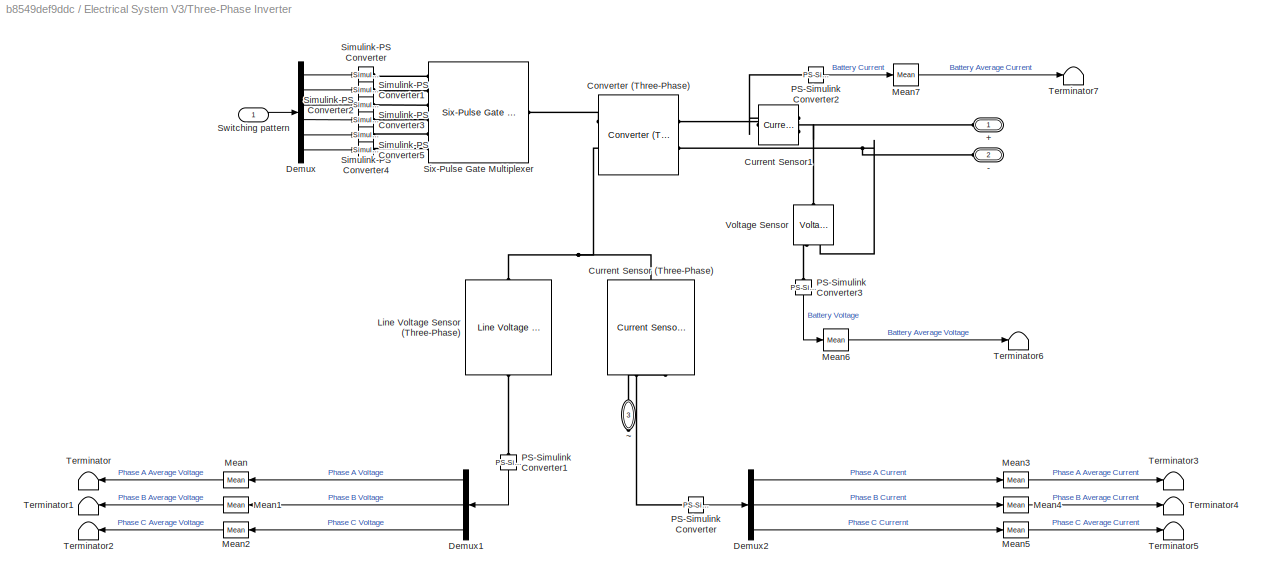
BLOCK [SubSystem] Electrical System V3/Three-Phase Inverter
  Ports = [1, 0, 0, 0, 0, 2, 1]
BLOCK [PMIOPort] Electrical System V3/Three-Phase Inverter/+
  NameLocation = top
  Side = Left
BLOCK [PMIOPort] Electrical System V3/Three-Phase Inverter/-
  NameLocation = top
  Port = 2
  Side = Left
BLOCK [Reference] Electrical System V3/Three-Phase Inverter/Converter (Three-Phase)  REF=ee_lib/Semiconductors &
Converters/Converters/Converter
(Three-Phase)
  Ports = [0, 0, 0, 0, 0, 2, 2]
  SourceBlock = ee_lib/Semiconductors &\nConverters/Converters/Converter\n(Three-Phase)
  SourceType = Converter\n(Three-Phase)
BLOCK [Reference] Electrical System V3/Three-Phase Inverter/Current Sensor (Three-Phase)  REF=ee_lib/Sensors &
Transducers/Current Sensor
(Three-Phase)
  NameLocation = left
  Ports = [0, 0, 0, 0, 0, 1, 2]
  SourceBlock = ee_lib/Sensors &\nTransducers/Current Sensor\n(Three-Phase)
  SourceType = Current Sensor\n(Three-Phase)
BLOCK [Reference] Electrical System V3/Three-Phase Inverter/Current Sensor1  REF=fl_lib/Electrical/Electrical Sensors/Current Sensor
  NameLocation = top
  Ports = [0, 0, 0, 0, 0, 1, 2]
  SourceBlock = fl_lib/Electrical/Electrical Sensors/Current Sensor
  SourceType = Current Sensor
BLOCK [Demux] Electrical System V3/Three-Phase Inverter/Demux
  Outputs = 6
  Ports = [1, 6]
BLOCK [Demux] Electrical System V3/Three-Phase Inverter/Demux1
  NameLocation = top
  Outputs = 3
  Ports = [1, 3]
BLOCK [Demux] Electrical System V3/Three-Phase Inverter/Demux2
  Outputs = 3
  Ports = [1, 3]
BLOCK [Reference] Electrical System V3/Three-Phase Inverter/Line Voltage Sensor (Three-Phase)  REF=ee_lib/Sensors &
Transducers/Line Voltage Sensor
(Three-Phase)
  NameLocation = right
  Ports = [0, 0, 0, 0, 0, 1, 1]
  SourceBlock = ee_lib/Sensors &\nTransducers/Line Voltage Sensor\n(Three-Phase)
  SourceType = Line Voltage Sensor\n(Three-Phase)
BLOCK [Reference] Electrical System V3/Three-Phase Inverter/Mean  REF=powerlib_meascontrol/Measurements/Mean
  NameLocation = top
  Ports = [1, 1]
  SourceBlock = powerlib_meascontrol/Measurements/Mean
  SourceType = Mean
BLOCK [Reference] Electrical System V3/Three-Phase Inverter/Mean1  REF=powerlib_meascontrol/Measurements/Mean
  NameLocation = top
  Ports = [1, 1]
  SourceBlock = powerlib_meascontrol/Measurements/Mean
  SourceType = Mean
BLOCK [Reference] Electrical System V3/Three-Phase Inverter/Mean2  REF=powerlib_meascontrol/Measurements/Mean
  NameLocation = top
  Ports = [1, 1]
  SourceBlock = powerlib_meascontrol/Measurements/Mean
  SourceType = Mean
BLOCK [Reference] Electrical System V3/Three-Phase Inverter/Mean3  REF=powerlib_meascontrol/Measurements/Mean
  Ports = [1, 1]
  SourceBlock = powerlib_meascontrol/Measurements/Mean
  SourceType = Mean
BLOCK [Reference] Electrical System V3/Three-Phase Inverter/Mean4  REF=powerlib_meascontrol/Measurements/Mean
  Ports = [1, 1]
  SourceBlock = powerlib_meascontrol/Measurements/Mean
  SourceType = Mean
BLOCK [Reference] Electrical System V3/Three-Phase Inverter/Mean5  REF=powerlib_meascontrol/Measurements/Mean
  Ports = [1, 1]
  SourceBlock = powerlib_meascontrol/Measurements/Mean
  SourceType = Mean
BLOCK [Reference] Electrical System V3/Three-Phase Inverter/Mean6  REF=powerlib_meascontrol/Measurements/Mean
  Ports = [1, 1]
  SourceBlock = powerlib_meascontrol/Measurements/Mean
  SourceType = Mean
BLOCK [Reference] Electrical System V3/Three-Phase Inverter/Mean7  REF=powerlib_meascontrol/Measurements/Mean
  Ports = [1, 1]
  SourceBlock = powerlib_meascontrol/Measurements/Mean
  SourceType = Mean
BLOCK [Reference] Electrical System V3/Three-Phase Inverter/PS-Simulink Converter  REF=nesl_utility/PS-Simulink
Converter
  Ports = [0, 1, 0, 0, 0, 1]
  SourceBlock = nesl_utility/PS-Simulink\nConverter
  SourceType = PS-Simulink\nConverter
BLOCK [Reference] Electrical System V3/Three-Phase Inverter/PS-Simulink Converter1  REF=nesl_utility/PS-Simulink
Converter
  NameLocation = left
  Ports = [0, 1, 0, 0, 0, 1]
  SourceBlock = nesl_utility/PS-Simulink\nConverter
  SourceType = PS-Simulink\nConverter
BLOCK [Reference] Electrical System V3/Three-Phase Inverter/PS-Simulink Converter2  REF=nesl_utility/PS-Simulink
Converter
  Ports = [0, 1, 0, 0, 0, 1]
  SourceBlock = nesl_utility/PS-Simulink\nConverter
  SourceType = PS-Simulink\nConverter
BLOCK [Reference] Electrical System V3/Three-Phase Inverter/PS-Simulink Converter3  REF=nesl_utility/PS-Simulink
Converter
  NameLocation = left
  Ports = [0, 1, 0, 0, 0, 1]
  SourceBlock = nesl_utility/PS-Simulink\nConverter
  SourceType = PS-Simulink\nConverter
BLOCK [Reference] Electrical System V3/Three-Phase Inverter/Simulink-PS Converter  REF=nesl_utility/Simulink-PS
Converter
  Ports = [1, 0, 0, 0, 0, 0, 1]
  SourceBlock = nesl_utility/Simulink-PS\nConverter
  SourceType = Simulink-PS\nConverter
BLOCK [Reference] Electrical System V3/Three-Phase Inverter/Simulink-PS Converter1  REF=nesl_utility/Simulink-PS
Converter
  Ports = [1, 0, 0, 0, 0, 0, 1]
  SourceBlock = nesl_utility/Simulink-PS\nConverter
  SourceType = Simulink-PS\nConverter
BLOCK [Reference] Electrical System V3/Three-Phase Inverter/Simulink-PS Converter2  REF=nesl_utility/Simulink-PS
Converter
  Ports = [1, 0, 0, 0, 0, 0, 1]
  SourceBlock = nesl_utility/Simulink-PS\nConverter
  SourceType = Simulink-PS\nConverter
BLOCK [Reference] Electrical System V3/Three-Phase Inverter/Simulink-PS Converter3  REF=nesl_utility/Simulink-PS
Converter
  Ports = [1, 0, 0, 0, 0, 0, 1]
  SourceBlock = nesl_utility/Simulink-PS\nConverter
  SourceType = Simulink-PS\nConverter
BLOCK [Reference] Electrical System V3/Three-Phase Inverter/Simulink-PS Converter4  REF=nesl_utility/Simulink-PS
Converter
  Ports = [1, 0, 0, 0, 0, 0, 1]
  SourceBlock = nesl_utility/Simulink-PS\nConverter
  SourceType = Simulink-PS\nConverter
BLOCK [Reference] Electrical System V3/Three-Phase Inverter/Simulink-PS Converter5  REF=nesl_utility/Simulink-PS
Converter
  Ports = [1, 0, 0, 0, 0, 0, 1]
  SourceBlock = nesl_utility/Simulink-PS\nConverter
  SourceType = Simulink-PS\nConverter
BLOCK [Reference] Electrical System V3/Three-Phase Inverter/Six-Pulse Gate Multiplexer  REF=ee_lib/Semiconductors &
Converters/Converters/Six-Pulse Gate
Multiplexer
  Ports = [0, 0, 0, 0, 0, 6, 1]
  SourceBlock = ee_lib/Semiconductors &\nConverters/Converters/Six-Pulse Gate\nMultiplexer
  SourceType = Six-Pulse Gate\nMultiplexer
BLOCK [Inport] Electrical System V3/Three-Phase Inverter/Switching pattern
BLOCK [Terminator] Electrical System V3/Three-Phase Inverter/Terminator
  NameLocation = top
BLOCK [Terminator] Electrical System V3/Three-Phase Inverter/Terminator1
  NameLocation = top
BLOCK [Terminator] Electrical System V3/Three-Phase Inverter/Terminator2
  NameLocation = right
BLOCK [Terminator] Electrical System V3/Three-Phase Inverter/Terminator3
BLOCK [Terminator] Electrical System V3/Three-Phase Inverter/Terminator4
BLOCK [Terminator] Electrical System V3/Three-Phase Inverter/Terminator5
BLOCK [Terminator] Electrical System V3/Three-Phase Inverter/Terminator6
BLOCK [Terminator] Electrical System V3/Three-Phase Inverter/Terminator7
BLOCK [Reference] Electrical System V3/Three-Phase Inverter/Voltage Sensor  REF=fl_lib/Electrical/Electrical Sensors/Voltage Sensor
  NameLocation = right
  Ports = [0, 0, 0, 0, 0, 1, 2]
  SourceBlock = fl_lib/Electrical/Electrical Sensors/Voltage Sensor
  SourceType = Voltage Sensor
BLOCK [PMIOPort] Electrical System V3/Three-Phase Inverter/~
  NameLocation = left
  Port = 3
  Side = Right
BLOCK [UnitDelay] Electrical System V3/Unit Delay
  HasFrameUpgradeWarning = on
  SampleTime = -1
BLOCK [SubSystem] Electrical System V4
  Commented = on
  Ports = []
BLOCK [Reference] Electrical System V4/Aerodynamic Drag  REF=fl_lib/Mechanical/Mechanical Sources/Ideal Torque Source
  Ports = [0, 0, 0, 0, 0, 1, 2]
  SourceBlock = fl_lib/Mechanical/Mechanical Sources/Ideal Torque Source
  SourceType = Ideal Torque Source
BLOCK [Reference] Electrical System V4/Battery  REF=batteryecm_lib/Battery
  NameLocation = right
  Ports = [0, 0, 0, 0, 0, 1, 1]
  SourceBlock = batteryecm_lib/Battery
  SourceType = Battery
BLOCK [Reference] Electrical System V4/Controlled PWM Voltage  REF=ee_lib/Integrated Circuits/Controlled PWM
Voltage
  Ports = [0, 0, 0, 0, 0, 1, 2]
  SourceBlock = ee_lib/Integrated Circuits/Controlled PWM\nVoltage
  SourceType = Controlled PWM\nVoltage
BLOCK [Reference] Electrical System V4/Current Sensor  REF=fl_lib/Electrical/Electrical Sensors/Current Sensor
  NameLocation = top
  Ports = [0, 0, 0, 0, 0, 1, 2]
  SourceBlock = fl_lib/Electrical/Electrical Sensors/Current Sensor
  SourceType = Current Sensor
BLOCK [Reference] Electrical System V4/DC Motor  REF=ee_lib/Electromechanical/Brushed Motors/DC Motor
  NameLocation = left
  Ports = [0, 0, 0, 0, 0, 2, 2]
  SourceBlock = ee_lib/Electromechanical/Brushed Motors/DC Motor
  SourceType = DC Motor
BLOCK [Reference] Electrical System V4/ERef  REF=fl_lib/Electrical/Electrical Elements/Electrical Reference
  NameLocation = left
  Ports = [0, 0, 0, 0, 0, 1]
  SourceBlock = fl_lib/Electrical/Electrical Elements/Electrical Reference
  SourceType = Electrical Reference
BLOCK [From] Electrical System V4/From
  GotoTag = AngularSpeed1
  NameLocation = top
  TagVisibility = global
BLOCK [Gain] Electrical System V4/Gain
BLOCK [Goto] Electrical System V4/Goto2
  GotoTag = SpeedRed
  TagVisibility = global
BLOCK [Goto] Electrical System V4/Goto4
  GotoTag = Trq1
  NameLocation = left
  TagVisibility = global
BLOCK [Reference] Electrical System V4/H-Bridge  REF=ee_lib/Semiconductors &
Converters/Converters/H-Bridge
  Ports = [0, 0, 0, 0, 0, 4, 4]
  SourceBlock = ee_lib/Semiconductors &\nConverters/Converters/H-Bridge
  SourceType = H-Bridge
BLOCK [Reference] Electrical System V4/Ideal Rotational Motion Sensor  REF=fl_lib/Mechanical/Mechanical Sensors/Ideal Rotational
Motion Sensor
  NameLocation = right
  Ports = [0, 0, 0, 0, 0, 1, 3]
  SourceBlock = fl_lib/Mechanical/Mechanical Sensors/Ideal Rotational\nMotion Sensor
  SourceType = Ideal Rotational\nMotion Sensor
BLOCK [Reference] Electrical System V4/Ideal Torque Sensor  REF=fl_lib/Mechanical/Mechanical Sensors/Ideal Torque Sensor
  Ports = [0, 0, 0, 0, 0, 1, 2]
  SourceBlock = fl_lib/Mechanical/Mechanical Sensors/Ideal Torque Sensor
  SourceType = Ideal Torque Sensor
BLOCK [Reference] Electrical System V4/MRRef  REF=fl_lib/Mechanical/Rotational Elements/Mechanical
Rotational Reference
  NameLocation = right
  Ports = [0, 0, 0, 0, 0, 1]
  SourceBlock = fl_lib/Mechanical/Rotational Elements/Mechanical\nRotational Reference
  SourceType = Mechanical\nRotational Reference
BLOCK [Reference] Electrical System V4/Mechanical Rotational Reference2  REF=fl_lib/Mechanical/Rotational Elements/Mechanical
Rotational Reference
  NameLocation = top
  Ports = [0, 0, 0, 0, 0, 1]
  SourceBlock = fl_lib/Mechanical/Rotational Elements/Mechanical\nRotational Reference
  SourceType = Mechanical\nRotational Reference
BLOCK [Goto] Electrical System V4/Motor Angle
  GotoTag = Angle1
  NameLocation = right
  TagVisibility = global
BLOCK [Goto] Electrical System V4/Motor Angular Speed
  GotoTag = AngularSpeed1
  NameLocation = left
  TagVisibility = global
BLOCK [Goto] Electrical System V4/Motor Current
  GotoTag = ia
  TagVisibility = global
BLOCK [Goto] Electrical System V4/Motor Voltage
  GotoTag = voltage
  NameLocation = top
  TagVisibility = global
BLOCK [Reference] Electrical System V4/PS-Simulink  REF=nesl_utility/PS-Simulink
Converter
  NameLocation = left
  Ports = [0, 1, 0, 0, 0, 1]
  SourceBlock = nesl_utility/PS-Simulink\nConverter
  SourceType = PS-Simulink\nConverter
BLOCK [Reference] Electrical System V4/PS-Simulink Converter  REF=nesl_utility/PS-Simulink
Converter
  NameLocation = top
  Ports = [0, 1, 0, 0, 0, 1]
  SourceBlock = nesl_utility/PS-Simulink\nConverter
  SourceType = PS-Simulink\nConverter
BLOCK [Reference] Electrical System V4/PS-Simulink Converter1  REF=nesl_utility/PS-Simulink
Converter
  Ports = [0, 1, 0, 0, 0, 1]
  SourceBlock = nesl_utility/PS-Simulink\nConverter
  SourceType = PS-Simulink\nConverter
BLOCK [Reference] Electrical System V4/PS-Simulink1  REF=nesl_utility/PS-Simulink
Converter
  Ports = [0, 1, 0, 0, 0, 1]
  SourceBlock = nesl_utility/PS-Simulink\nConverter
  SourceType = PS-Simulink\nConverter
BLOCK [Reference] Electrical System V4/PS-Simulink2  REF=nesl_utility/PS-Simulink
Converter
  NameLocation = left
  Ports = [0, 1, 0, 0, 0, 1]
  SourceBlock = nesl_utility/PS-Simulink\nConverter
  SourceType = PS-Simulink\nConverter
BLOCK [Reference] Electrical System V4/Propeller Inertia  REF=fl_lib/Mechanical/Rotational Elements/Inertia
  NameLocation = right
  Ports = [0, 0, 0, 0, 0, 1]
  SourceBlock = fl_lib/Mechanical/Rotational Elements/Inertia
  SourceType = Inertia
BLOCK [SubSystem] Electrical System V4/RPM to Resistive Torque and Thrust
  NameLocation = top
  Ports = [1, 2]
BLOCK [Inport] Electrical System V4/RPM to Resistive Torque and Thrust/Angular Speed
BLOCK [Constant] Electrical System V4/RPM to Resistive Torque and Thrust/Constant
  Value = 0
BLOCK [From] Electrical System V4/RPM to Resistive Torque and Thrust/From
  Commented = on
  GotoTag = Velocity
  TagVisibility = global
BLOCK [Gain] Electrical System V4/RPM to Resistive Torque and Thrust/Gain
  Gain = -1
BLOCK [Outport] Electrical System V4/RPM to Resistive Torque and Thrust/Resistive Torque
  Port = 2
BLOCK [Saturate] Electrical System V4/RPM to Resistive Torque and Thrust/Saturation
  LowerLimit = 0
  UpperLimit = 15000
BLOCK [Outport] Electrical System V4/RPM to Resistive Torque and Thrust/Thrust
BLOCK [SubSystem] Electrical System V4/RPM to Resistive Torque and Thrust/Thrust & Torque Based on Propeller Rotational and Translational Velocity
  ErrorFcn = Stateflow.Translate.translate
  PermitHierarchicalResolution = ExplicitOnly
  Ports = [2, 2]
  SFBlockType = MATLAB Function
  TreatAsAtomicUnit = on
BLOCK [Demux] Electrical System V4/RPM to Resistive Torque and Thrust/Thrust & Torque Based on Propeller Rotational and Translational Velocity/ Demux 
  Outputs = 1
  Ports = [1, 1]
BLOCK [S-Function] Electrical System V4/RPM to Resistive Torque and Thrust/Thrust & Torque Based on Propeller Rotational and Translational Velocity/ SFunction 
  EnableBusSupport = off
  FunctionName = sf_sfun
  PortCounts = [2 3]
  Ports = [2, 3]
  SFcnIsStateOwnerBlock = off
  SFunctionDeploymentMode = off
  Tag = Stateflow S-Function 2
BLOCK [Terminator] Electrical System V4/RPM to Resistive Torque and Thrust/Thrust & Torque Based on Propeller Rotational and Translational Velocity/ Terminator 
BLOCK [Inport] Electrical System V4/RPM to Resistive Torque and Thrust/Thrust & Torque Based on Propeller Rotational and Translational Velocity/RPM
  Port = 2
BLOCK [Outport] Electrical System V4/RPM to Resistive Torque and Thrust/Thrust & Torque Based on Propeller Rotational and Translational Velocity/Thrust
BLOCK [Outport] Electrical System V4/RPM to Resistive Torque and Thrust/Thrust & Torque Based on Propeller Rotational and Translational Velocity/Torque
  Port = 2
BLOCK [Inport] Electrical System V4/RPM to Resistive Torque and Thrust/Thrust & Torque Based on Propeller Rotational and Translational Velocity/Velocity
BLOCK [Scope] Electrical System V4/Scope
  Floating = off
  NameLocation = right
  NumInputPorts = 1
  Ports = [1]
  ScopeSpecificationString = Simulink.scopes.TimeScopeBlockCfg('CurrentConfiguration', extmgr.ConfigurationSet(extmgr.Configuration('Core','General UI',true),extmgr.Configuration('Core','Source UI',true),extmgr.Configuration('Sources','WiredSimulink',true,'DataLoggingVariableName','ScopeData1'),extmgr.Configuration('Visuals','Time Domain',true,'SerializedDisplays',{struct('MinYLimReal','0.00207','MaxYLimReal','0.6646','YLabel...<+1439ch>
BLOCK [SubSystem] Electrical System V4/Signals
  Ports = [0, 4]
BLOCK [From] Electrical System V4/Signals/From
  GotoTag = ia
  TagVisibility = global
BLOCK [From] Electrical System V4/Signals/From1
  GotoTag = AngularSpeed1
  TagVisibility = global
BLOCK [From] Electrical System V4/Signals/From2
  GotoTag = SpeedRed
  TagVisibility = global
BLOCK [From] Electrical System V4/Signals/From3
  GotoTag = voltage
  TagVisibility = global
BLOCK [From] Electrical System V4/Signals/From4
  GotoTag = Trq1
  TagVisibility = global
BLOCK [Mux] Electrical System V4/Signals/Mux
  DisplayOption = bar
  Inputs = 2
  Ports = [2, 1]
BLOCK [RateTransition] Electrical System V4/Signals/Rate Transition1
BLOCK [RateTransition] Electrical System V4/Signals/Rate Transition2
BLOCK [RateTransition] Electrical System V4/Signals/Rate Transition3
BLOCK [RateTransition] Electrical System V4/Signals/Rate Transition5
BLOCK [Outport] Electrical System V4/Signals/Spd
  VectorParamsAs1DForOutWhenUnconnected = off
BLOCK [Outport] Electrical System V4/Signals/Trq
  Port = 3
  VectorParamsAs1DForOutWhenUnconnected = off
BLOCK [Outport] Electrical System V4/Signals/V
  Port = 4
  VectorParamsAs1DForOutWhenUnconnected = off
BLOCK [Outport] Electrical System V4/Signals/ia
  Port = 2
  VectorParamsAs1DForOutWhenUnconnected = off
BLOCK [Reference] Electrical System V4/Simulink-PS Converter  REF=nesl_utility/Simulink-PS
Converter
  Ports = [1, 0, 0, 0, 0, 0, 1]
  SourceBlock = nesl_utility/Simulink-PS\nConverter
  SourceType = Simulink-PS\nConverter
BLOCK [Reference] Electrical System V4/Simulink-PS Converter1  REF=nesl_utility/Simulink-PS
Converter
  NameLocation = top
  Ports = [1, 0, 0, 0, 0, 0, 1]
  SourceBlock = nesl_utility/Simulink-PS\nConverter
  SourceType = Simulink-PS\nConverter
BLOCK [Reference] Electrical System V4/Solver Configuration  REF=nesl_utility/Solver
Configuration
  Ports = [0, 0, 0, 0, 0, 0, 1]
  SourceBlock = nesl_utility/Solver\nConfiguration
  SourceType = Solver\nConfiguration
BLOCK [Sum] Electrical System V4/Sum
  Inputs = |+-
  Ports = [2, 1]
BLOCK [Terminator] Electrical System V4/Terminator
BLOCK [Goto] Electrical System V4/Thrust
  GotoTag = Thrust1
  NameLocation = top
  TagVisibility = global
BLOCK [TransferFcn] Electrical System V4/Transfer Fcn
  Denominator = [1 1*2*pi]
  Numerator = [1*2*pi]
BLOCK [TransferFcn] Electrical System V4/Transfer Fcn1
  Denominator = [1 1*2*pi]
  Numerator = [1*2*pi]
BLOCK [Scope] Electrical System V4/Visualization
  Floating = off
  NumInputPorts = 4
  Ports = [4]
  ScopeSpecificationString = Simulink.scopes.TimeScopeBlockCfg('CurrentConfiguration', extmgr.ConfigurationSet(extmgr.Configuration('Core','General UI',true),extmgr.Configuration('Core','Source UI',true),extmgr.Configuration('Sources','WiredSimulink',true,'DataLoggingVariableName','ScopeData2'),extmgr.Configuration('Visuals','Time Domain',true,'SerializedDisplays',{struct('MinYLimReal','-9253.65661','MaxYLimReal','3282.9095',...<+3392ch>
BLOCK [Reference] Electrical System V4/Voltage Sensor  REF=fl_lib/Electrical/Electrical Sensors/Voltage Sensor
  NameLocation = right
  Ports = [0, 0, 0, 0, 0, 1, 2]
  SourceBlock = fl_lib/Electrical/Electrical Sensors/Voltage Sensor
  SourceType = Voltage Sensor
BLOCK [Step] Electrical System V4/rpmReq
  After = -8000
  Before = 2000
  SampleTime = 0
  Time = 2.5
BLOCK [SubSystem] Electrical System V5
  Ports = []
BLOCK [Reference] Electrical System V5/Aerodynamic Drag  REF=fl_lib/Mechanical/Mechanical Sources/Ideal Torque Source
  Ports = [0, 0, 0, 0, 0, 1, 2]
  SourceBlock = fl_lib/Mechanical/Mechanical Sources/Ideal Torque Source
  SourceType = Ideal Torque Source
BLOCK [Reference] Electrical System V5/Controlled Voltage Source  REF=fl_lib/Electrical/Electrical Sources/Controlled Voltage
Source
  Ports = [0, 0, 0, 0, 0, 1, 2]
  SourceBlock = fl_lib/Electrical/Electrical Sources/Controlled Voltage\nSource
  SourceType = Controlled Voltage\nSource
BLOCK [Reference] Electrical System V5/Current Limiter  REF=ee_lib/Semiconductors &
Converters/Current Limiter
  Ports = [0, 0, 0, 0, 0, 1, 1]
  SourceBlock = ee_lib/Semiconductors &\nConverters/Current Limiter
  SourceType = Current Limiter
BLOCK [Reference] Electrical System V5/Current Sensor  REF=fl_lib/Electrical/Electrical Sensors/Current Sensor
  NameLocation = top
  Ports = [0, 0, 0, 0, 0, 1, 2]
  SourceBlock = fl_lib/Electrical/Electrical Sensors/Current Sensor
  SourceType = Current Sensor
BLOCK [Reference] Electrical System V5/DC Motor  REF=ee_lib/Electromechanical/Brushed Motors/DC Motor
  NameLocation = left
  Ports = [0, 0, 0, 0, 0, 2, 2]
  SourceBlock = ee_lib/Electromechanical/Brushed Motors/DC Motor
  SourceType = DC Motor
BLOCK [Reference] Electrical System V5/ERef  REF=fl_lib/Electrical/Electrical Elements/Electrical Reference
  NameLocation = left
  Ports = [0, 0, 0, 0, 0, 1]
  SourceBlock = fl_lib/Electrical/Electrical Elements/Electrical Reference
  SourceType = Electrical Reference
BLOCK [From] Electrical System V5/From
  GotoTag = AngularSpeed1
  NameLocation = top
  TagVisibility = global
BLOCK [Goto] Electrical System V5/Goto2
  GotoTag = SpeedRed
  TagVisibility = global
BLOCK [Goto] Electrical System V5/Goto4
  GotoTag = Trq1
  NameLocation = left
  TagVisibility = global
BLOCK [Reference] Electrical System V5/Ideal Rotational Motion Sensor  REF=fl_lib/Mechanical/Mechanical Sensors/Ideal Rotational
Motion Sensor
  NameLocation = right
  Ports = [0, 0, 0, 0, 0, 1, 3]
  SourceBlock = fl_lib/Mechanical/Mechanical Sensors/Ideal Rotational\nMotion Sensor
  SourceType = Ideal Rotational\nMotion Sensor
BLOCK [Reference] Electrical System V5/Ideal Torque Sensor  REF=fl_lib/Mechanical/Mechanical Sensors/Ideal Torque Sensor
  Ports = [0, 0, 0, 0, 0, 1, 2]
  SourceBlock = fl_lib/Mechanical/Mechanical Sensors/Ideal Torque Sensor
  SourceType = Ideal Torque Sensor
BLOCK [Reference] Electrical System V5/MRRef  REF=fl_lib/Mechanical/Rotational Elements/Mechanical
Rotational Reference
  NameLocation = right
  Ports = [0, 0, 0, 0, 0, 1]
  SourceBlock = fl_lib/Mechanical/Rotational Elements/Mechanical\nRotational Reference
  SourceType = Mechanical\nRotational Reference
BLOCK [Reference] Electrical System V5/Mechanical Rotational Reference2  REF=fl_lib/Mechanical/Rotational Elements/Mechanical
Rotational Reference
  NameLocation = top
  Ports = [0, 0, 0, 0, 0, 1]
  SourceBlock = fl_lib/Mechanical/Rotational Elements/Mechanical\nRotational Reference
  SourceType = Mechanical\nRotational Reference
BLOCK [Goto] Electrical System V5/Motor Angle
  GotoTag = Angle1
  NameLocation = right
  TagVisibility = global
BLOCK [Goto] Electrical System V5/Motor Angular Speed
  GotoTag = AngularSpeed1
  NameLocation = left
  TagVisibility = global
BLOCK [Goto] Electrical System V5/Motor Current
  GotoTag = ia
  TagVisibility = global
BLOCK [Goto] Electrical System V5/Motor Voltage
  GotoTag = voltage
  NameLocation = top
  TagVisibility = global
BLOCK [Reference] Electrical System V5/PS-Simulink  REF=nesl_utility/PS-Simulink
Converter
  NameLocation = left
  Ports = [0, 1, 0, 0, 0, 1]
  SourceBlock = nesl_utility/PS-Simulink\nConverter
  SourceType = PS-Simulink\nConverter
BLOCK [Reference] Electrical System V5/PS-Simulink Converter  REF=nesl_utility/PS-Simulink
Converter
  NameLocation = top
  Ports = [0, 1, 0, 0, 0, 1]
  SourceBlock = nesl_utility/PS-Simulink\nConverter
  SourceType = PS-Simulink\nConverter
BLOCK [Reference] Electrical System V5/PS-Simulink Converter1  REF=nesl_utility/PS-Simulink
Converter
  Ports = [0, 1, 0, 0, 0, 1]
  SourceBlock = nesl_utility/PS-Simulink\nConverter
  SourceType = PS-Simulink\nConverter
BLOCK [Reference] Electrical System V5/PS-Simulink1  REF=nesl_utility/PS-Simulink
Converter
  Ports = [0, 1, 0, 0, 0, 1]
  SourceBlock = nesl_utility/PS-Simulink\nConverter
  SourceType = PS-Simulink\nConverter
BLOCK [Reference] Electrical System V5/PS-Simulink2  REF=nesl_utility/PS-Simulink
Converter
  NameLocation = left
  Ports = [0, 1, 0, 0, 0, 1]
  SourceBlock = nesl_utility/PS-Simulink\nConverter
  SourceType = PS-Simulink\nConverter
BLOCK [Reference] Electrical System V5/Propeller Inertia  REF=fl_lib/Mechanical/Rotational Elements/Inertia
  NameLocation = right
  Ports = [0, 0, 0, 0, 0, 1]
  SourceBlock = fl_lib/Mechanical/Rotational Elements/Inertia
  SourceType = Inertia
BLOCK [SubSystem] Electrical System V5/RPM to Resistive Torque and Thrust
  NameLocation = top
  Ports = [1, 2]
BLOCK [Inport] Electrical System V5/RPM to Resistive Torque and Thrust/Angular Speed
BLOCK [Constant] Electrical System V5/RPM to Resistive Torque and Thrust/Constant
  Value = 0
BLOCK [From] Electrical System V5/RPM to Resistive Torque and Thrust/From
  Commented = on
  GotoTag = Velocity
  TagVisibility = global
BLOCK [Gain] Electrical System V5/RPM to Resistive Torque and Thrust/Gain
  Gain = -1
BLOCK [Outport] Electrical System V5/RPM to Resistive Torque and Thrust/Resistive Torque
  Port = 2
BLOCK [Saturate] Electrical System V5/RPM to Resistive Torque and Thrust/Saturation
  LowerLimit = 0
  UpperLimit = 15000
BLOCK [Outport] Electrical System V5/RPM to Resistive Torque and Thrust/Thrust
BLOCK [SubSystem] Electrical System V5/RPM to Resistive Torque and Thrust/Thrust & Torque Based on Propeller Rotational and Translational Velocity
  ErrorFcn = Stateflow.Translate.translate
  PermitHierarchicalResolution = ExplicitOnly
  Ports = [2, 2]
  SFBlockType = MATLAB Function
  TreatAsAtomicUnit = on
BLOCK [Demux] Electrical System V5/RPM to Resistive Torque and Thrust/Thrust & Torque Based on Propeller Rotational and Translational Velocity/ Demux 
  Outputs = 1
  Ports = [1, 1]
BLOCK [S-Function] Electrical System V5/RPM to Resistive Torque and Thrust/Thrust & Torque Based on Propeller Rotational and Translational Velocity/ SFunction 
  EnableBusSupport = off
  FunctionName = sf_sfun
  PortCounts = [2 3]
  Ports = [2, 3]
  SFcnIsStateOwnerBlock = off
  SFunctionDeploymentMode = off
  Tag = Stateflow S-Function 3
BLOCK [Terminator] Electrical System V5/RPM to Resistive Torque and Thrust/Thrust & Torque Based on Propeller Rotational and Translational Velocity/ Terminator 
BLOCK [Inport] Electrical System V5/RPM to Resistive Torque and Thrust/Thrust & Torque Based on Propeller Rotational and Translational Velocity/RPM
  Port = 2
BLOCK [Outport] Electrical System V5/RPM to Resistive Torque and Thrust/Thrust & Torque Based on Propeller Rotational and Translational Velocity/Thrust
BLOCK [Outport] Electrical System V5/RPM to Resistive Torque and Thrust/Thrust & Torque Based on Propeller Rotational and Translational Velocity/Torque
  Port = 2
BLOCK [Inport] Electrical System V5/RPM to Resistive Torque and Thrust/Thrust & Torque Based on Propeller Rotational and Translational Velocity/Velocity
BLOCK [Saturate] Electrical System V5/Saturation
  LowerLimit = 0
  UpperLimit = 14.8
BLOCK [Scope] Electrical System V5/Scope
  Floating = off
  NameLocation = right
  NumInputPorts = 1
  Ports = [1]
  ScopeSpecificationString = Simulink.scopes.TimeScopeBlockCfg('CurrentConfiguration', extmgr.ConfigurationSet(extmgr.Configuration('Core','General UI',true),extmgr.Configuration('Core','Source UI',true),extmgr.Configuration('Sources','WiredSimulink',true,'DataLoggingVariableName','ScopeData1'),extmgr.Configuration('Visuals','Time Domain',true,'SerializedDisplays',{struct('MinYLimReal','-1.74542','MaxYLimReal','16.3949','YLab...<+1445ch>
BLOCK [Scope] Electrical System V5/Scope1
  Floating = off
  NumInputPorts = 1
  Ports = [1]
  ScopeSpecificationString = Simulink.scopes.TimeScopeBlockCfg('CurrentConfiguration', extmgr.ConfigurationSet(extmgr.Configuration('Core','General UI',true),extmgr.Configuration('Core','Source UI',true),extmgr.Configuration('Sources','WiredSimulink',true,'DataLoggingVariableName','ScopeData1'),extmgr.Configuration('Visuals','Time Domain',true,'SerializedDisplays',{struct('MinYLimReal','-1625.02609','MaxYLimReal','14625.23485...<+1388ch>
BLOCK [Scope] Electrical System V5/Scope2
  Floating = off
  NumInputPorts = 1
  Ports = [1]
  ScopeSpecificationString = Simulink.scopes.TimeScopeBlockCfg('CurrentConfiguration', extmgr.ConfigurationSet(extmgr.Configuration('Core','General UI',true),extmgr.Configuration('Core','Source UI',true),extmgr.Configuration('Sources','WiredSimulink',true,'DataLoggingVariableName','ScopeData2'),extmgr.Configuration('Visuals','Time Domain',true,'SerializedDisplays',{struct('MinYLimReal','-1326.21978','MaxYLimReal','11933.89039...<+1396ch>
BLOCK [SubSystem] Electrical System V5/Signals
  Ports = [0, 4]
BLOCK [From] Electrical System V5/Signals/From
  GotoTag = ia
  TagVisibility = global
BLOCK [From] Electrical System V5/Signals/From1
  GotoTag = AngularSpeed1
  TagVisibility = global
BLOCK [From] Electrical System V5/Signals/From2
  GotoTag = SpeedRed
  TagVisibility = global
BLOCK [From] Electrical System V5/Signals/From3
  GotoTag = voltage
  TagVisibility = global
BLOCK [From] Electrical System V5/Signals/From4
  GotoTag = Trq1
  TagVisibility = global
BLOCK [Mux] Electrical System V5/Signals/Mux
  DisplayOption = bar
  Inputs = 2
  Ports = [2, 1]
BLOCK [RateTransition] Electrical System V5/Signals/Rate Transition1
BLOCK [RateTransition] Electrical System V5/Signals/Rate Transition2
BLOCK [RateTransition] Electrical System V5/Signals/Rate Transition3
BLOCK [RateTransition] Electrical System V5/Signals/Rate Transition5
BLOCK [Outport] Electrical System V5/Signals/Spd
  VectorParamsAs1DForOutWhenUnconnected = off
BLOCK [Outport] Electrical System V5/Signals/Trq
  Port = 3
  VectorParamsAs1DForOutWhenUnconnected = off
BLOCK [Outport] Electrical System V5/Signals/V
  Port = 4
  VectorParamsAs1DForOutWhenUnconnected = off
BLOCK [Outport] Electrical System V5/Signals/ia
  Port = 2
  VectorParamsAs1DForOutWhenUnconnected = off
BLOCK [Reference] Electrical System V5/Simulink-PS Converter  REF=nesl_utility/Simulink-PS
Converter
  Ports = [1, 0, 0, 0, 0, 0, 1]
  SourceBlock = nesl_utility/Simulink-PS\nConverter
  SourceType = Simulink-PS\nConverter
BLOCK [Reference] Electrical System V5/Simulink-PS Converter1  REF=nesl_utility/Simulink-PS
Converter
  NameLocation = top
  Ports = [1, 0, 0, 0, 0, 0, 1]
  SourceBlock = nesl_utility/Simulink-PS\nConverter
  SourceType = Simulink-PS\nConverter
BLOCK [Reference] Electrical System V5/Solver Configuration  REF=nesl_utility/Solver
Configuration
  Ports = [0, 0, 0, 0, 0, 0, 1]
  SourceBlock = nesl_utility/Solver\nConfiguration
  SourceType = Solver\nConfiguration
BLOCK [Sum] Electrical System V5/Sum
  Inputs = |+-
  Ports = [2, 1]
BLOCK [Terminator] Electrical System V5/Terminator
BLOCK [Goto] Electrical System V5/Thrust
  GotoTag = Thrust1
  NameLocation = top
  TagVisibility = global
BLOCK [TransferFcn] Electrical System V5/Transfer Fcn2
  Commented = on
  Denominator = [1 1*2*pi]
  Numerator = [1*2*pi]
BLOCK [Scope] Electrical System V5/Visualization
  Floating = off
  NumInputPorts = 4
  Ports = [4]
  ScopeSpecificationString = Simulink.scopes.TimeScopeBlockCfg('CurrentConfiguration', extmgr.ConfigurationSet(extmgr.Configuration('Core','General UI',true),extmgr.Configuration('Core','Source UI',true),extmgr.Configuration('Sources','WiredSimulink',true,'DataLoggingVariableName','ScopeData2'),extmgr.Configuration('Visuals','Time Domain',true,'SerializedDisplays',{struct('MinYLimReal','-1625.23485','MaxYLimReal','14625.02609...<+3474ch>
BLOCK [Reference] Electrical System V5/Voltage Sensor  REF=fl_lib/Electrical/Electrical Sensors/Voltage Sensor
  NameLocation = right
  Ports = [0, 0, 0, 0, 0, 1, 2]
  SourceBlock = fl_lib/Electrical/Electrical Sensors/Voltage Sensor
  SourceType = Voltage Sensor
BLOCK [Step] Electrical System V5/rpmReq
  After = 13000
  SampleTime = 0
BLOCK [SubSystem] Math Model Lift 
  Commented = on
  Ports = []
BLOCK [Constant] Math Model Lift /Constant
BLOCK [Scope] Math Model Lift /Current1
  Floating = off
  NameLocation = right
  NumInputPorts = 1
  Ports = [1]
  ScopeSpecificationString = Simulink.scopes.TimeScopeBlockCfg('CurrentConfiguration', extmgr.ConfigurationSet(extmgr.Configuration('Core','General UI',true),extmgr.Configuration('Core','Source UI',true),extmgr.Configuration('Sources','WiredSimulink',true,'DataLoggingVariableName','ScopeData1'),extmgr.Configuration('Visuals','Time Domain',true,'SerializedDisplays',{struct('MinYLimReal','-1101.19983','MaxYLimReal','9910.79848'...<+1456ch>
BLOCK [Gain] Math Model Lift /Gain4
  Gain = Ke
BLOCK [Scope] Math Model Lift /Scope
  Floating = off
  NumInputPorts = 1
  Ports = [1]
  ScopeSpecificationString = Simulink.scopes.TimeScopeBlockCfg('CurrentConfiguration', extmgr.ConfigurationSet(extmgr.Configuration('Core','General UI',true),extmgr.Configuration('Core','Source UI',true),extmgr.Configuration('Sources','WiredSimulink',true,'DataLoggingVariableName','ScopeData1'),extmgr.Configuration('Visuals','Time Domain',true),extmgr.Configuration('Tools','Plot Navigation',true),extmgr.Configuration('Tools',...<+40ch>
BLOCK [Sum] Math Model Lift /Sum4
  Inputs = |+-
  Ports = [2, 1]
BLOCK [Sum] Math Model Lift /Sum5
  Inputs = |+-
  Ports = [2, 1]
BLOCK [TransferFcn] Math Model Lift /Transfer Fcn1
  Denominator = [1 2*a*w0/J]
BLOCK [TransferFcn] Math Model Lift /si//su G1(s) without inductance1
  Denominator = [J*R 2*a*w0*R+kv*kt]
  Numerator = [J 2*a*w0]
BLOCK [Gain] Math Model Lift /st//su (linear)1
  Gain = kt
BLOCK [TransferFcn] Math Model Lift /sw//st1
  Denominator = [J 2*a*w0]
ANNOTATION Electrical System V3/Commutation Logic: AH AL BH BL CH CL
ANNOTATION Electrical System V3/Hall Sensor: Hall Sensor
ANNOTATION Electrical System V3/Hall Sensor: Rotor Angle
ANNOTATION Math Model Lift : Inner Loop = Voltage to Current
ANNOTATION Math Model Lift : OuterLopp = Current to Torque to Motor Angular Velocity
LINE Electrical System V1/Constant4:1 -> Electrical System V1/Sum4:1
NET Electrical System V1/Mean3:1 -> Electrical System V1/Display6:1, Electrical System V1/Scope8:2
NET Electrical System V1/Mean4:1 -> Electrical System V1/Display8:1, Electrical System V1/Scope9:2
NET Electrical System V1/Mean5:1 -> Electrical System V1/Display7:1, Electrical System V1/Scope10:1
NET Electrical System V1/PS-Simulink10:1 -> Electrical System V1/Mean3:1, Electrical System V1/Scope8:1
NET Electrical System V1/PS-Simulink11:1 -> Electrical System V1/Mean4:1, Electrical System V1/Scope9:1
NET Electrical System V1/PS-Simulink8:1 -> Electrical System V1/Display5:1, Electrical System V1/rad//s:1
NET Electrical System V1/PS-Simulink9:1 -> Electrical System V1/Mean5:1, Electrical System V1/Scope10:2
LINE Electrical System V1/Probe/Ground1:1 -> Electrical System V1/Probe/Out1:1
LINE Electrical System V1/Probe:1 -> Electrical System V1/Scope11:1
LINE Electrical System V1/Sum4:1 -> Electrical System V1/Transfer Fcn1:1
LINE Electrical System V1/Transfer Fcn1:1 -> Electrical System V1/Simulink-PS Converter2:1
LINE Electrical System V2/Add:1 -> Electrical System V2/PID Controller1:1
LINE Electrical System V2/From1:1 -> Electrical System V2/Add:2
LINE Electrical System V2/PID Controller1:1 -> Electrical System V2/Simulink-PS Converter:1
LINE Electrical System V2/PS-Simulink Converter2:1 -> Electrical System V2/Goto2:1
LINE Electrical System V2/PS-Simulink Converter:1 -> Electrical System V2/Goto:1
LINE Electrical System V2/Sensing Speed/Motor Speed:1 -> Electrical System V2/Sensing Speed/Goto:1
LINE Electrical System V2/Sensing Speed/PS-Simulink Converter1:1 -> Electrical System V2/Sensing Speed/Goto3:1
NET Electrical System V2/Signal Builder:1 -> Electrical System V2/Add:1, Electrical System V2/Goto1:1
LINE Electrical System V2/Signals/From1:1 -> Electrical System V2/Signals/Mux:2
LINE Electrical System V2/Signals/From2:1 -> Electrical System V2/Signals/Mux:1
LINE Electrical System V2/Signals/From4:1 -> Electrical System V2/Signals/Motor Torque:1
LINE Electrical System V2/Signals/From5:1 -> Electrical System V2/Signals/Motor Voltage:1
LINE Electrical System V2/Signals/From:1 -> Electrical System V2/Signals/Motor Current:1
LINE Electrical System V2/Signals/Motor Angular Velocity:1 -> Electrical System V2/Signals/Angular Speed:1
LINE Electrical System V2/Signals/Motor Current:1 -> Electrical System V2/Signals/Current:1
LINE Electrical System V2/Signals/Motor Torque:1 -> Electrical System V2/Signals/Torque:1
LINE Electrical System V2/Signals/Motor Voltage:1 -> Electrical System V2/Signals/Voltage:1
LINE Electrical System V2/Signals/Mux:1 -> Electrical System V2/Signals/Motor Angular Velocity:1
LINE Electrical System V2/Signals:1 -> Electrical System V2/Scope:1
LINE Electrical System V2/Signals:2 -> Electrical System V2/Scope:2
LINE Electrical System V2/Signals:3 -> Electrical System V2/Scope:3
LINE Electrical System V2/Signals:4 -> Electrical System V2/Scope:4
LINE Electrical System V3/Aero Drag/PS-Simulink Converter:1 -> Electrical System V3/Aero Drag/Terminator:1
LINE Electrical System V3/Aero Drag/RPM to Resistive Torque and Thrust/Constant:1 -> Electrical System V3/Aero Drag/RPM to Resistive Torque and Thrust/Thrust & Torque Based on Propeller Rotational and Translational Velocity:1
LINE Electrical System V3/Aero Drag/RPM to Resistive Torque and Thrust/PS-Simulink Converter1:1 -> Electrical System V3/Aero Drag/RPM to Resistive Torque and Thrust/Unit Delay:1
LINE Electrical System V3/Aero Drag/RPM to Resistive Torque and Thrust/Thrust & Torque Based on Propeller Rotational and Translational Velocity:1 -> Electrical System V3/Aero Drag/RPM to Resistive Torque and Thrust/Thrust:1
LINE Electrical System V3/Aero Drag/RPM to Resistive Torque and Thrust/Thrust & Torque Based on Propeller Rotational and Translational Velocity:2 -> Electrical System V3/Aero Drag/RPM to Resistive Torque and Thrust/Resistive Torque:1
LINE Electrical System V3/Aero Drag/RPM to Resistive Torque and Thrust/Unit Delay:1 -> Electrical System V3/Aero Drag/RPM to Resistive Torque and Thrust/Thrust & Torque Based on Propeller Rotational and Translational Velocity:2
LINE Electrical System V3/Aero Drag/RPM to Resistive Torque and Thrust:1 -> Electrical System V3/Aero Drag/Thrust:1
NET Electrical System V3/Aero Drag/RPM to Resistive Torque and Thrust:2 -> Electrical System V3/Aero Drag/Simulink-PS Converter:1, Electrical System V3/Aero Drag/Torque:1
LINE Electrical System V3/Commutation Logic/Constant10:1 -> Electrical System V3/Commutation Logic/Multiport Switch1:6
LINE Electrical System V3/Commutation Logic/Constant11:1 -> Electrical System V3/Commutation Logic/Multiport Switch1:7
LINE Electrical System V3/Commutation Logic/Constant1:1 -> Electrical System V3/Commutation Logic/Multiport Switch:3
LINE Electrical System V3/Commutation Logic/Constant2:1 -> Electrical System V3/Commutation Logic/Multiport Switch:4
LINE Electrical System V3/Commutation Logic/Constant3:1 -> Electrical System V3/Commutation Logic/Multiport Switch1:2
LINE Electrical System V3/Commutation Logic/Constant4:1 -> Electrical System V3/Commutation Logic/Multiport Switch:5
LINE Electrical System V3/Commutation Logic/Constant5:1 -> Electrical System V3/Commutation Logic/Multiport Switch:6
LINE Electrical System V3/Commutation Logic/Constant6:1 -> Electrical System V3/Commutation Logic/Multiport Switch:7
LINE Electrical System V3/Commutation Logic/Constant7:1 -> Electrical System V3/Commutation Logic/Multiport Switch1:3
LINE Electrical System V3/Commutation Logic/Constant8:1 -> Electrical System V3/Commutation Logic/Multiport Switch1:4
LINE Electrical System V3/Commutation Logic/Constant9:1 -> Electrical System V3/Commutation Logic/Multiport Switch1:5
LINE Electrical System V3/Commutation Logic/Constant:1 -> Electrical System V3/Commutation Logic/Multiport Switch:2
LINE Electrical System V3/Commutation Logic/Duty Cycle:1 -> Electrical System V3/Commutation Logic/PWM Generator (DC-DC):1
LINE Electrical System V3/Commutation Logic/Multiport Switch1:1 -> Electrical System V3/Commutation Logic/Switch:3
LINE Electrical System V3/Commutation Logic/Multiport Switch:1 -> Electrical System V3/Commutation Logic/Switch:1
NET Electrical System V3/Commutation Logic/PWM Generator (DC-DC):1 -> Electrical System V3/Commutation Logic/Scope:1, Electrical System V3/Commutation Logic/Switch:2
NET Electrical System V3/Commutation Logic/Sector:1 -> Electrical System V3/Commutation Logic/Multiport Switch1:1, Electrical System V3/Commutation Logic/Multiport Switch:1
LINE Electrical System V3/Commutation Logic/Switch:1 -> Electrical System V3/Commutation Logic/  MOSFET Switching Pattern:1
NET Electrical System V3/Commutation Logic:1 -> Electrical System V3/Scope:1, Electrical System V3/Three-Phase Inverter:1
LINE Electrical System V3/Controller/Discrete PID Controller:1 -> Electrical System V3/Controller/Duty Cycle:1
LINE Electrical System V3/Controller/Error:1 -> Electrical System V3/Controller/Discrete PID Controller:1
NET Electrical System V3/Controller:1 -> Electrical System V3/Commutation Logic:1, Electrical System V3/Scope1:1
NET Electrical System V3/Desired speed/Repeating Sequence Interpolated1:1 -> Electrical System V3/Desired speed/Desired Speed:1, Electrical System V3/Desired speed/Out1:1
NET Electrical System V3/Desired speed:1 -> Electrical System V3/Scope5:2, Electrical System V3/Sum:1
LINE Electrical System V3/Hall Sensor/Constant12:1 -> Electrical System V3/Hall Sensor/Relational Operator2:2
LINE Electrical System V3/Hall Sensor/Constant13:1 -> Electrical System V3/Hall Sensor/Relational Operator1:2
LINE Electrical System V3/Hall Sensor/Constant14:1 -> Electrical System V3/Hall Sensor/Relational Operator11:2
LINE Electrical System V3/Hall Sensor/Constant15:1 -> Electrical System V3/Hall Sensor/Relational Operator12:2
LINE Electrical System V3/Hall Sensor/Constant16:1 -> Electrical System V3/Hall Sensor/Relational Operator4:2
LINE Electrical System V3/Hall Sensor/Constant17:1 -> Electrical System V3/Hall Sensor/Relational Operator3:2
LINE Electrical System V3/Hall Sensor/Constant18:1 -> Electrical System V3/Hall Sensor/Relational Operator6:2
LINE Electrical System V3/Hall Sensor/Constant19:1 -> Electrical System V3/Hall Sensor/Relational Operator5:2
LINE Electrical System V3/Hall Sensor/Constant20:1 -> Electrical System V3/Hall Sensor/Relational Operator8:2
LINE Electrical System V3/Hall Sensor/Constant21:1 -> Electrical System V3/Hall Sensor/Relational Operator7:2
LINE Electrical System V3/Hall Sensor/Constant22:1 -> Electrical System V3/Hall Sensor/Relational Operator10:2
LINE Electrical System V3/Hall Sensor/Constant23:1 -> Electrical System V3/Hall Sensor/Relational Operator9:2
LINE Electrical System V3/Hall Sensor/Constant3:1 -> Electrical System V3/Hall Sensor/Math Function:2
LINE Electrical System V3/Hall Sensor/Data Type Conversion1:1 -> Electrical System V3/Hall Sensor/Gain7:1
LINE Electrical System V3/Hall Sensor/Data Type Conversion2:1 -> Electrical System V3/Hall Sensor/Gain8:1
LINE Electrical System V3/Hall Sensor/Data Type Conversion3:1 -> Electrical System V3/Hall Sensor/Gain9:1
LINE Electrical System V3/Hall Sensor/Data Type Conversion4:1 -> Electrical System V3/Hall Sensor/Gain10:1
LINE Electrical System V3/Hall Sensor/Data Type Conversion5:1 -> Electrical System V3/Hall Sensor/Gain11:1
LINE Electrical System V3/Hall Sensor/Data Type Conversion:1 -> Electrical System V3/Hall Sensor/Gain6:1
LINE Electrical System V3/Hall Sensor/Gain10:1 -> Electrical System V3/Hall Sensor/Sum2:5
LINE Electrical System V3/Hall Sensor/Gain11:1 -> Electrical System V3/Hall Sensor/Sum2:6
LINE Electrical System V3/Hall Sensor/Gain2:1 -> Electrical System V3/Hall Sensor/Number of Poles Pairs:1
LINE Electrical System V3/Hall Sensor/Gain6:1 -> Electrical System V3/Hall Sensor/Sum2:1
LINE Electrical System V3/Hall Sensor/Gain7:1 -> Electrical System V3/Hall Sensor/Sum2:2
LINE Electrical System V3/Hall Sensor/Gain8:1 -> Electrical System V3/Hall Sensor/Sum2:3
LINE Electrical System V3/Hall Sensor/Gain9:1 -> Electrical System V3/Hall Sensor/Sum2:4
LINE Electrical System V3/Hall Sensor/Logical Operator1:1 -> Electrical System V3/Hall Sensor/Data Type Conversion1:1
LINE Electrical System V3/Hall Sensor/Logical Operator2:1 -> Electrical System V3/Hall Sensor/Data Type Conversion2:1
LINE Electrical System V3/Hall Sensor/Logical Operator3:1 -> Electrical System V3/Hall Sensor/Data Type Conversion3:1
LINE Electrical System V3/Hall Sensor/Logical Operator4:1 -> Electrical System V3/Hall Sensor/Data Type Conversion4:1
LINE Electrical System V3/Hall Sensor/Logical Operator5:1 -> Electrical System V3/Hall Sensor/Data Type Conversion5:1
LINE Electrical System V3/Hall Sensor/Logical Operator:1 -> Electrical System V3/Hall Sensor/Data Type Conversion:1
NET Electrical System V3/Hall Sensor/Math Function:1 -> Electrical System V3/Hall Sensor/Relational Operator10:1, Electrical System V3/Hall Sensor/Relational Operator11:1, Electrical System V3/Hall Sensor/Relational Operator12:1, Electrical System V3/Hall Sensor/Relational Operator1:1, Electrical System V3/Hall Sensor/Relational Operator2:1, Electrical System V3/Hall Sensor/Relational Operator3:1, Electrical System V3/Hall Sensor/Relational Operator4:1, Electrical System V3/Hall Sensor/Relational Operator5:1, Electrical System V3/Hall Sensor/Relational Operator6:1, Electrical System V3/Hall Sensor/Relational Operator7:1, Electrical System V3/Hall Sensor/Relational Operator8:1, Electrical System V3/Hall Sensor/Relational Operator9:1
LINE Electrical System V3/Hall Sensor/Number of Poles Pairs:1 -> Electrical System V3/Hall Sensor/Unit Delay:1
LINE Electrical System V3/Hall Sensor/PS-Simulink Converter1:1 -> Electrical System V3/Hall Sensor/Motor Angular Measured speed:1
NET Electrical System V3/Hall Sensor/PS-Simulink Converter2:1 -> Electrical System V3/Hall Sensor/Gain2:1, Electrical System V3/Hall Sensor/Goto:1
LINE Electrical System V3/Hall Sensor/Relational Operator10:1 -> Electrical System V3/Hall Sensor/Logical Operator4:1
LINE Electrical System V3/Hall Sensor/Relational Operator11:1 -> Electrical System V3/Hall Sensor/Logical Operator5:1
LINE Electrical System V3/Hall Sensor/Relational Operator12:1 -> Electrical System V3/Hall Sensor/Logical Operator5:2
LINE Electrical System V3/Hall Sensor/Relational Operator1:1 -> Electrical System V3/Hall Sensor/Logical Operator:2
LINE Electrical System V3/Hall Sensor/Relational Operator2:1 -> Electrical System V3/Hall Sensor/Logical Operator:1
LINE Electrical System V3/Hall Sensor/Relational Operator3:1 -> Electrical System V3/Hall Sensor/Logical Operator1:2
LINE Electrical System V3/Hall Sensor/Relational Operator4:1 -> Electrical System V3/Hall Sensor/Logical Operator1:1
LINE Electrical System V3/Hall Sensor/Relational Operator5:1 -> Electrical System V3/Hall Sensor/Logical Operator2:2
LINE Electrical System V3/Hall Sensor/Relational Operator6:1 -> Electrical System V3/Hall Sensor/Logical Operator2:1
LINE Electrical System V3/Hall Sensor/Relational Operator7:1 -> Electrical System V3/Hall Sensor/Logical Operator3:2
LINE Electrical System V3/Hall Sensor/Relational Operator8:1 -> Electrical System V3/Hall Sensor/Logical Operator3:1
LINE Electrical System V3/Hall Sensor/Relational Operator9:1 -> Electrical System V3/Hall Sensor/Logical Operator4:2
LINE Electrical System V3/Hall Sensor/Saturation:1 -> Electrical System V3/Hall Sensor/Sector:1
LINE Electrical System V3/Hall Sensor/Sum2:1 -> Electrical System V3/Hall Sensor/Saturation:1
LINE Electrical System V3/Hall Sensor/Unit Delay:1 -> Electrical System V3/Hall Sensor/Math Function:1
NET Electrical System V3/Hall Sensor:1 -> Electrical System V3/Commutation Logic:2, Electrical System V3/Scope3:1
NET Electrical System V3/Hall Sensor:2 -> Electrical System V3/Goto:1, Electrical System V3/Scope4:1, Electrical System V3/Unit Delay:1
NET Electrical System V3/Sum:1 -> Electrical System V3/Controller:1, Electrical System V3/Scope2:1
LINE Electrical System V3/Three-Phase Inverter/Demux1:1 -> Electrical System V3/Three-Phase Inverter/Mean:1
LINE Electrical System V3/Three-Phase Inverter/Demux1:2 -> Electrical System V3/Three-Phase Inverter/Mean1:1
LINE Electrical System V3/Three-Phase Inverter/Demux1:3 -> Electrical System V3/Three-Phase Inverter/Mean2:1
LINE Electrical System V3/Three-Phase Inverter/Demux2:1 -> Electrical System V3/Three-Phase Inverter/Mean3:1
LINE Electrical System V3/Three-Phase Inverter/Demux2:2 -> Electrical System V3/Three-Phase Inverter/Mean4:1
LINE Electrical System V3/Three-Phase Inverter/Demux2:3 -> Electrical System V3/Three-Phase Inverter/Mean5:1
LINE Electrical System V3/Three-Phase Inverter/Demux:1 -> Electrical System V3/Three-Phase Inverter/Simulink-PS Converter:1
LINE Electrical System V3/Three-Phase Inverter/Demux:2 -> Electrical System V3/Three-Phase Inverter/Simulink-PS Converter1:1
LINE Electrical System V3/Three-Phase Inverter/Demux:3 -> Electrical System V3/Three-Phase Inverter/Simulink-PS Converter2:1
LINE Electrical System V3/Three-Phase Inverter/Demux:4 -> Electrical System V3/Three-Phase Inverter/Simulink-PS Converter3:1
LINE Electrical System V3/Three-Phase Inverter/Demux:5 -> Electrical System V3/Three-Phase Inverter/Simulink-PS Converter4:1
LINE Electrical System V3/Three-Phase Inverter/Demux:6 -> Electrical System V3/Three-Phase Inverter/Simulink-PS Converter5:1
LINE Electrical System V3/Three-Phase Inverter/Mean1:1 -> Electrical System V3/Three-Phase Inverter/Terminator1:1
LINE Electrical System V3/Three-Phase Inverter/Mean2:1 -> Electrical System V3/Three-Phase Inverter/Terminator2:1
LINE Electrical System V3/Three-Phase Inverter/Mean3:1 -> Electrical System V3/Three-Phase Inverter/Terminator3:1
LINE Electrical System V3/Three-Phase Inverter/Mean4:1 -> Electrical System V3/Three-Phase Inverter/Terminator4:1
LINE Electrical System V3/Three-Phase Inverter/Mean5:1 -> Electrical System V3/Three-Phase Inverter/Terminator5:1
LINE Electrical System V3/Three-Phase Inverter/Mean6:1 -> Electrical System V3/Three-Phase Inverter/Terminator6:1
LINE Electrical System V3/Three-Phase Inverter/Mean7:1 -> Electrical System V3/Three-Phase Inverter/Terminator7:1
LINE Electrical System V3/Three-Phase Inverter/Mean:1 -> Electrical System V3/Three-Phase Inverter/Terminator:1
LINE Electrical System V3/Three-Phase Inverter/PS-Simulink Converter1:1 -> Electrical System V3/Three-Phase Inverter/Demux1:1
LINE Electrical System V3/Three-Phase Inverter/PS-Simulink Converter2:1 -> Electrical System V3/Three-Phase Inverter/Mean7:1
LINE Electrical System V3/Three-Phase Inverter/PS-Simulink Converter3:1 -> Electrical System V3/Three-Phase Inverter/Mean6:1
LINE Electrical System V3/Three-Phase Inverter/PS-Simulink Converter:1 -> Electrical System V3/Three-Phase Inverter/Demux2:1
LINE Electrical System V3/Three-Phase Inverter/Switching pattern:1 -> Electrical System V3/Three-Phase Inverter/Demux:1
LINE Electrical System V3/Unit Delay:1 -> Electrical System V3/Sum:2
LINE Electrical System V4/From:1 -> Electrical System V4/RPM to Resistive Torque and Thrust:1
LINE Electrical System V4/Gain:1 -> Electrical System V4/Simulink-PS Converter:1
LINE Electrical System V4/PS-Simulink Converter1:1 -> Electrical System V4/Terminator:1
LINE Electrical System V4/PS-Simulink Converter:1 -> Electrical System V4/Transfer Fcn1:1
LINE Electrical System V4/PS-Simulink1:1 -> Electrical System V4/Transfer Fcn:1
LINE Electrical System V4/PS-Simulink2:1 -> Electrical System V4/Motor Angle:1
NET Electrical System V4/PS-Simulink:1 -> Electrical System V4/Motor Angular Speed:1, Electrical System V4/Sum:2
LINE Electrical System V4/RPM to Resistive Torque and Thrust/Angular Speed:1 -> Electrical System V4/RPM to Resistive Torque and Thrust/Saturation:1
LINE Electrical System V4/RPM to Resistive Torque and Thrust/Constant:1 -> Electrical System V4/RPM to Resistive Torque and Thrust/Thrust & Torque Based on Propeller Rotational and Translational Velocity:1
LINE Electrical System V4/RPM to Resistive Torque and Thrust/Gain:1 -> Electrical System V4/RPM to Resistive Torque and Thrust/Resistive Torque:1
LINE Electrical System V4/RPM to Resistive Torque and Thrust/Saturation:1 -> Electrical System V4/RPM to Resistive Torque and Thrust/Thrust & Torque Based on Propeller Rotational and Translational Velocity:2
LINE Electrical System V4/RPM to Resistive Torque and Thrust/Thrust & Torque Based on Propeller Rotational and Translational Velocity:1 -> Electrical System V4/RPM to Resistive Torque and Thrust/Thrust:1
LINE Electrical System V4/RPM to Resistive Torque and Thrust/Thrust & Torque Based on Propeller Rotational and Translational Velocity:2 -> Electrical System V4/RPM to Resistive Torque and Thrust/Gain:1
NET Electrical System V4/RPM to Resistive Torque and Thrust:1 -> Electrical System V4/Scope:1, Electrical System V4/Thrust:1
NET Electrical System V4/RPM to Resistive Torque and Thrust:2 -> Electrical System V4/Goto4:1, Electrical System V4/Simulink-PS Converter1:1
LINE Electrical System V4/Signals/From1:1 -> Electrical System V4/Signals/Rate Transition5:1
LINE Electrical System V4/Signals/From2:1 -> Electrical System V4/Signals/Mux:1
LINE Electrical System V4/Signals/From3:1 -> Electrical System V4/Signals/Rate Transition3:1
LINE Electrical System V4/Signals/From4:1 -> Electrical System V4/Signals/Rate Transition2:1
LINE Electrical System V4/Signals/From:1 -> Electrical System V4/Signals/Rate Transition1:1
LINE Electrical System V4/Signals/Mux:1 -> Electrical System V4/Signals/Spd:1
LINE Electrical System V4/Signals/Rate Transition1:1 -> Electrical System V4/Signals/ia:1
LINE Electrical System V4/Signals/Rate Transition2:1 -> Electrical System V4/Signals/Trq:1
LINE Electrical System V4/Signals/Rate Transition3:1 -> Electrical System V4/Signals/V:1
LINE Electrical System V4/Signals/Rate Transition5:1 -> Electrical System V4/Signals/Mux:2
LINE Electrical System V4/Signals:1 -> Electrical System V4/Visualization:1
LINE Electrical System V4/Signals:2 -> Electrical System V4/Visualization:2
LINE Electrical System V4/Signals:3 -> Electrical System V4/Visualization:3
LINE Electrical System V4/Signals:4 -> Electrical System V4/Visualization:4
LINE Electrical System V4/Sum:1 -> Electrical System V4/Gain:1
LINE Electrical System V4/Transfer Fcn1:1 -> Electrical System V4/Motor Voltage:1
LINE Electrical System V4/Transfer Fcn:1 -> Electrical System V4/Motor Current:1
NET Electrical System V4/rpmReq:1 -> Electrical System V4/Goto2:1, Electrical System V4/Sum:1
LINE Electrical System V5/From:1 -> Electrical System V5/RPM to Resistive Torque and Thrust:1
LINE Electrical System V5/PS-Simulink Converter1:1 -> Electrical System V5/Terminator:1
LINE Electrical System V5/PS-Simulink Converter:1 -> Electrical System V5/Motor Voltage:1
LINE Electrical System V5/PS-Simulink1:1 -> Electrical System V5/Motor Current:1
LINE Electrical System V5/PS-Simulink2:1 -> Electrical System V5/Motor Angle:1
NET Electrical System V5/PS-Simulink:1 -> Electrical System V5/Motor Angular Speed:1, Electrical System V5/Scope2:1, Electrical System V5/Sum:2
LINE Electrical System V5/RPM to Resistive Torque and Thrust/Angular Speed:1 -> Electrical System V5/RPM to Resistive Torque and Thrust/Saturation:1
LINE Electrical System V5/RPM to Resistive Torque and Thrust/Constant:1 -> Electrical System V5/RPM to Resistive Torque and Thrust/Thrust & Torque Based on Propeller Rotational and Translational Velocity:1
LINE Electrical System V5/RPM to Resistive Torque and Thrust/Gain:1 -> Electrical System V5/RPM to Resistive Torque and Thrust/Resistive Torque:1
LINE Electrical System V5/RPM to Resistive Torque and Thrust/Saturation:1 -> Electrical System V5/RPM to Resistive Torque and Thrust/Thrust & Torque Based on Propeller Rotational and Translational Velocity:2
LINE Electrical System V5/RPM to Resistive Torque and Thrust/Thrust & Torque Based on Propeller Rotational and Translational Velocity:1 -> Electrical System V5/RPM to Resistive Torque and Thrust/Thrust:1
LINE Electrical System V5/RPM to Resistive Torque and Thrust/Thrust & Torque Based on Propeller Rotational and Translational Velocity:2 -> Electrical System V5/RPM to Resistive Torque and Thrust/Gain:1
NET Electrical System V5/RPM to Resistive Torque and Thrust:1 -> Electrical System V5/Scope:1, Electrical System V5/Thrust:1
NET Electrical System V5/RPM to Resistive Torque and Thrust:2 -> Electrical System V5/Goto4:1, Electrical System V5/Simulink-PS Converter1:1
LINE Electrical System V5/Saturation:1 -> Electrical System V5/Simulink-PS Converter:1
LINE Electrical System V5/Signals/From1:1 -> Electrical System V5/Signals/Rate Transition5:1
LINE Electrical System V5/Signals/From2:1 -> Electrical System V5/Signals/Mux:1
LINE Electrical System V5/Signals/From3:1 -> Electrical System V5/Signals/Rate Transition3:1
LINE Electrical System V5/Signals/From4:1 -> Electrical System V5/Signals/Rate Transition2:1
LINE Electrical System V5/Signals/From:1 -> Electrical System V5/Signals/Rate Transition1:1
LINE Electrical System V5/Signals/Mux:1 -> Electrical System V5/Signals/Spd:1
LINE Electrical System V5/Signals/Rate Transition1:1 -> Electrical System V5/Signals/ia:1
LINE Electrical System V5/Signals/Rate Transition2:1 -> Electrical System V5/Signals/Trq:1
LINE Electrical System V5/Signals/Rate Transition3:1 -> Electrical System V5/Signals/V:1
LINE Electrical System V5/Signals/Rate Transition5:1 -> Electrical System V5/Signals/Mux:2
LINE Electrical System V5/Signals:1 -> Electrical System V5/Visualization:1
LINE Electrical System V5/Signals:2 -> Electrical System V5/Visualization:2
LINE Electrical System V5/Signals:3 -> Electrical System V5/Visualization:3
LINE Electrical System V5/Signals:4 -> Electrical System V5/Visualization:4
NET Electrical System V5/Sum:1 -> Electrical System V5/Saturation:1, Electrical System V5/Scope1:1
NET Electrical System V5/rpmReq:1 -> Electrical System V5/Goto2:1, Electrical System V5/Sum:1
LINE Math Model Lift /Constant:1 -> Math Model Lift /Sum4:1
LINE Math Model Lift /Gain4:1 -> Math Model Lift /Sum5:1
LINE Math Model Lift /Sum4:1 -> Math Model Lift /Gain4:1
LINE Math Model Lift /Sum5:1 -> Math Model Lift /Transfer Fcn1:1
LINE Math Model Lift /Transfer Fcn1:1 -> Math Model Lift /si//su G1(s) without inductance1:1
NET Math Model Lift /si//su G1(s) without inductance1:1 -> Math Model Lift /Current1:1, Math Model Lift /Sum5:2, Math Model Lift /st//su (linear)1:1
LINE Math Model Lift /st//su (linear)1:1 -> Math Model Lift /sw//st1:1
NET Math Model Lift /sw//st1:1 -> Math Model Lift /Scope:1, Math Model Lift /Sum4:2
PNET net1: Electrical System V1/Aero Drag/Aerodynamic Drag:LConn1 -- Electrical System V1/Aero Drag/Motion Sensor:LConn1 -- Electrical System V1/Aero Drag/R:RConn1
PLINE Electrical System V1/Aero Drag/Aerodynamic Drag:RConn1 -- Electrical System V1/Aero Drag/Square law:RConn1
PNET net2: Electrical System V1/Aero Drag/Aerodynamic Drag:RConn2 -- Electrical System V1/Aero Drag/C:RConn1 -- Electrical System V1/Aero Drag/Motion Sensor:RConn1
PLINE Electrical System V1/Aero Drag/Motion Sensor:RConn2 -- Electrical System V1/Aero Drag/Square law:LConn1
PLINE Electrical System V1/Aero Drag/Square law/Nm//(rad//s)^2:LConn1 -- Electrical System V1/Aero Drag/Square law/PS Product:RConn1
PLINE Electrical System V1/Aero Drag/Square law/Nm//(rad//s)^2:RConn1 -- Electrical System V1/Aero Drag/Square law/trq:RConn1
PNET net3: Electrical System V1/Aero Drag/Square law/PS Product:LConn1 -- Electrical System V1/Aero Drag/Square law/PS Product:LConn2 -- Electrical System V1/Aero Drag/Square law/w:RConn1
PNET net4: Electrical System V1/Aero Drag:LConn1 -- Electrical System V1/DC Motor3:LConn2 -- Electrical System V1/Propeller Inertia:LConn1 -- Electrical System V1/Sensing Speed1:LConn1
PNET net5: Electrical System V1/Aero Drag:RConn1 -- Electrical System V1/DC Motor3:RConn2 -- Electrical System V1/MRRef2:LConn1
PLINE Electrical System V1/Controlled PWM Voltage3:LConn1 -- Electrical System V1/Simulink-PS Converter2:RConn1
PNET net6: Electrical System V1/Controlled PWM Voltage3:RConn1 -- Electrical System V1/H-Bridge3:LConn1 -- Electrical System V1/Voltage Sensor6:LConn1
PNET net7: Electrical System V1/Controlled PWM Voltage3:RConn2 -- Electrical System V1/DC Motor3:RConn1 -- Electrical System V1/ERef2:LConn1 -- Electrical System V1/H-Bridge3:LConn2 -- Electrical System V1/H-Bridge3:LConn3 -- Electrical System V1/H-Bridge3:LConn4 -- Electrical System V1/H-Bridge3:RConn3 -- Electrical System V1/Solver Configuration3:RConn1 -- Electrical System V1/Voltage Sensor5:RConn2 -- Electrical System V1/Voltage Sensor6:RConn2
PLINE Electrical System V1/Current Sensor3:LConn1 -- Electrical System V1/H-Bridge3:RConn2
PLINE Electrical System V1/Current Sensor3:RConn1 -- Electrical System V1/PS-Simulink9:LConn1
PNET net8: Electrical System V1/Current Sensor3:RConn2 -- Electrical System V1/DC Motor3:LConn1 -- Electrical System V1/Voltage Sensor5:LConn1
PLINE Electrical System V1/PS-Simulink10:LConn1 -- Electrical System V1/Voltage Sensor5:RConn1
PLINE Electrical System V1/PS-Simulink11:LConn1 -- Electrical System V1/Voltage Sensor6:RConn1
PLINE Electrical System V1/PS-Simulink8:LConn1 -- Electrical System V1/Sensing Speed1:RConn1
PLINE Electrical System V1/Sensing Speed1/MRRef7:LConn1 -- Electrical System V1/Sensing Speed1/Motion Sensor:RConn1
PLINE Electrical System V1/Sensing Speed1/Motion Sensor:LConn1 -- Electrical System V1/Sensing Speed1/R:RConn1
PLINE Electrical System V1/Sensing Speed1/Motion Sensor:RConn2 -- Electrical System V1/Sensing Speed1/w:RConn1
PNET net9: Electrical System V2/Aero Drag/Aerodynamic Drag:LConn1 -- Electrical System V2/Aero Drag/Motion Sensor:LConn1 -- Electrical System V2/Aero Drag/R:RConn1
PLINE Electrical System V2/Aero Drag/Aerodynamic Drag:RConn1 -- Electrical System V2/Aero Drag/Square law:RConn1
PNET net10: Electrical System V2/Aero Drag/Aerodynamic Drag:RConn2 -- Electrical System V2/Aero Drag/C:RConn1 -- Electrical System V2/Aero Drag/Motion Sensor:RConn1
PLINE Electrical System V2/Aero Drag/Motion Sensor:RConn2 -- Electrical System V2/Aero Drag/Square law:LConn1
PLINE Electrical System V2/Aero Drag/Motion Sensor:RConn3 -- Electrical System V2/Aero Drag/PS Terminator:LConn1
PLINE Electrical System V2/Aero Drag/Square law/Nm//(rad//s)^2:LConn1 -- Electrical System V2/Aero Drag/Square law/PS Product:RConn1
PLINE Electrical System V2/Aero Drag/Square law/Nm//(rad//s)^2:RConn1 -- Electrical System V2/Aero Drag/Square law/trq:RConn1
PNET net11: Electrical System V2/Aero Drag/Square law/PS Product:LConn1 -- Electrical System V2/Aero Drag/Square law/PS Product:LConn2 -- Electrical System V2/Aero Drag/Square law/w:RConn1
PNET net12: Electrical System V2/Aero Drag:LConn1 -- Electrical System V2/DC Motor:LConn2 -- Electrical System V2/Sensing Speed:LConn1
PNET net13: Electrical System V2/Aero Drag:RConn1 -- Electrical System V2/DC Motor:RConn2 -- Electrical System V2/MRRef2:LConn1
PLINE Electrical System V2/Battery1:LConn1 -- Electrical System V2/Current Limiter:LConn1
PNET net14: Electrical System V2/Battery1:RConn1 -- Electrical System V2/Electrical Reference:LConn1 -- Electrical System V2/Solver Configuration:RConn1 -- Electrical System V2/Voltage Sensor:RConn2
PLINE Electrical System V2/Controlled PWM Voltage:LConn1 -- Electrical System V2/Simulink-PS Converter:RConn1
PLINE Electrical System V2/Controlled PWM Voltage:RConn1 -- Electrical System V2/H-Bridge:LConn1
PNET net15: Electrical System V2/Controlled PWM Voltage:RConn2 -- Electrical System V2/Electrical Reference2:LConn1 -- Electrical System V2/H-Bridge:LConn2 -- Electrical System V2/H-Bridge:LConn3 -- Electrical System V2/H-Bridge:LConn4
PNET net16: Electrical System V2/Current Limiter:RConn1 -- Electrical System V2/H-Bridge:RConn2 -- Electrical System V2/Voltage Sensor:LConn1
PLINE Electrical System V2/Current Sensor:LConn1 -- Electrical System V2/H-Bridge:RConn1
PLINE Electrical System V2/Current Sensor:RConn1 -- Electrical System V2/PS-Simulink Converter:LConn1
PLINE Electrical System V2/Current Sensor:RConn2 -- Electrical System V2/DC Motor:LConn1
PLINE Electrical System V2/DC Motor:RConn1 -- Electrical System V2/Electrical Reference1:LConn1
PLINE Electrical System V2/PS-Simulink Converter2:LConn1 -- Electrical System V2/Voltage Sensor:RConn1
PLINE Electrical System V2/Sensing Speed/Ideal Torque Sensor:LConn1 -- Electrical System V2/Sensing Speed/R:RConn1
PNET net17: Electrical System V2/Sensing Speed/Ideal Torque Sensor:RConn1 -- Electrical System V2/Sensing Speed/Motion Sensor:LConn1 -- Electrical System V2/Sensing Speed/Propeller Inertia:LConn1
PLINE Electrical System V2/Sensing Speed/Ideal Torque Sensor:RConn2 -- Electrical System V2/Sensing Speed/PS-Simulink Converter1:LConn1
PLINE Electrical System V2/Sensing Speed/MRRef1:LConn1 -- Electrical System V2/Sensing Speed/Motion Sensor:RConn1
PLINE Electrical System V2/Sensing Speed/Motion Sensor:RConn2 -- Electrical System V2/Sensing Speed/Motor Speed:LConn1
PNET net18: Electrical System V3/Aero Drag/Aerodynamic Drag:LConn1 -- Electrical System V3/Aero Drag/Ideal Torque Sensor1:LConn1 -- Electrical System V3/Aero Drag/Motion Sensor:LConn1
PLINE Electrical System V3/Aero Drag/Aerodynamic Drag:RConn1 -- Electrical System V3/Aero Drag/Simulink-PS Converter:RConn1
PNET net19: Electrical System V3/Aero Drag/Aerodynamic Drag:RConn2 -- Electrical System V3/Aero Drag/C:RConn1 -- Electrical System V3/Aero Drag/Motion Sensor:RConn1
PLINE Electrical System V3/Aero Drag/Ideal Torque Sensor1:RConn1 -- Electrical System V3/Aero Drag/R:RConn1
PLINE Electrical System V3/Aero Drag/Ideal Torque Sensor1:RConn2 -- Electrical System V3/Aero Drag/PS-Simulink Converter:LConn1
PLINE Electrical System V3/Aero Drag/Motion Sensor:RConn2 -- Electrical System V3/Aero Drag/RPM to Resistive Torque and Thrust:LConn1
PLINE Electrical System V3/Aero Drag/Motion Sensor:RConn3 -- Electrical System V3/Aero Drag/PS Terminator:LConn1
PLINE Electrical System V3/Aero Drag/RPM to Resistive Torque and Thrust/Angular Speed:RConn1 -- Electrical System V3/Aero Drag/RPM to Resistive Torque and Thrust/PS-Simulink Converter1:LConn1
PNET net20: Electrical System V3/Aero Drag:LConn1 -- Electrical System V3/BLDC:RConn1 -- Electrical System V3/Hall Sensor:LConn1 -- Electrical System V3/Propeller Inertia:LConn1
PNET net21: Electrical System V3/Aero Drag:RConn1 -- Electrical System V3/BLDC:RConn2 -- Electrical System V3/Mechanical Rotational Reference1:LConn1 -- Electrical System V3/Solver Configuration2:RConn1
PLINE Electrical System V3/BLDC:LConn1 -- Electrical System V3/Three-Phase Inverter:RConn1
PLINE Electrical System V3/Battery1:LConn1 -- Electrical System V3/Three-Phase Inverter:LConn1
PLINE Electrical System V3/Battery1:RConn1 -- Electrical System V3/Three-Phase Inverter:LConn2
PLINE Electrical System V3/Electrical Reference:LConn1 -- Electrical System V3/Resistor:RConn1
PLINE Electrical System V3/Hall Sensor/MRRef:LConn1 -- Electrical System V3/Hall Sensor/Motion Sensor:RConn1
PLINE Electrical System V3/Hall Sensor/Motion Sensor:LConn1 -- Electrical System V3/Hall Sensor/R:RConn1
PLINE Electrical System V3/Hall Sensor/Motion Sensor:RConn2 -- Electrical System V3/Hall Sensor/PS-Simulink Converter1:LConn1
PLINE Electrical System V3/Hall Sensor/Motion Sensor:RConn3 -- Electrical System V3/Hall Sensor/PS-Simulink Converter2:LConn1
PNET net22: Electrical System V3/Three-Phase Inverter/+:RConn1 -- Electrical System V3/Three-Phase Inverter/Current Sensor1:LConn1 -- Electrical System V3/Three-Phase Inverter/Voltage Sensor:LConn1
PNET net23: Electrical System V3/Three-Phase Inverter/-:RConn1 -- Electrical System V3/Three-Phase Inverter/Converter (Three-Phase):RConn2 -- Electrical System V3/Three-Phase Inverter/Voltage Sensor:RConn2
PLINE Electrical System V3/Three-Phase Inverter/Converter (Three-Phase):LConn1 -- Electrical System V3/Three-Phase Inverter/Six-Pulse Gate Multiplexer:RConn1
PNET net24: Electrical System V3/Three-Phase Inverter/Converter (Three-Phase):LConn2 -- Electrical System V3/Three-Phase Inverter/Current Sensor (Three-Phase):LConn1 -- Electrical System V3/Three-Phase Inverter/Line Voltage Sensor (Three-Phase):LConn1
PLINE Electrical System V3/Three-Phase Inverter/Converter (Three-Phase):RConn1 -- Electrical System V3/Three-Phase Inverter/Current Sensor1:RConn2
PLINE Electrical System V3/Three-Phase Inverter/Current Sensor (Three-Phase):RConn1 -- Electrical System V3/Three-Phase Inverter/PS-Simulink Converter:LConn1
PLINE Electrical System V3/Three-Phase Inverter/Current Sensor (Three-Phase):RConn2 -- Electrical System V3/Three-Phase Inverter/~:RConn1
PLINE Electrical System V3/Three-Phase Inverter/Current Sensor1:RConn1 -- Electrical System V3/Three-Phase Inverter/PS-Simulink Converter2:LConn1
PLINE Electrical System V3/Three-Phase Inverter/Line Voltage Sensor (Three-Phase):RConn1 -- Electrical System V3/Three-Phase Inverter/PS-Simulink Converter1:LConn1
PLINE Electrical System V3/Three-Phase Inverter/PS-Simulink Converter3:LConn1 -- Electrical System V3/Three-Phase Inverter/Voltage Sensor:RConn1
PLINE Electrical System V3/Three-Phase Inverter/Simulink-PS Converter1:RConn1 -- Electrical System V3/Three-Phase Inverter/Six-Pulse Gate Multiplexer:LConn2
PLINE Electrical System V3/Three-Phase Inverter/Simulink-PS Converter2:RConn1 -- Electrical System V3/Three-Phase Inverter/Six-Pulse Gate Multiplexer:LConn3
PLINE Electrical System V3/Three-Phase Inverter/Simulink-PS Converter3:RConn1 -- Electrical System V3/Three-Phase Inverter/Six-Pulse Gate Multiplexer:LConn4
PLINE Electrical System V3/Three-Phase Inverter/Simulink-PS Converter4:RConn1 -- Electrical System V3/Three-Phase Inverter/Six-Pulse Gate Multiplexer:LConn5
PLINE Electrical System V3/Three-Phase Inverter/Simulink-PS Converter5:RConn1 -- Electrical System V3/Three-Phase Inverter/Six-Pulse Gate Multiplexer:LConn6
PLINE Electrical System V3/Three-Phase Inverter/Simulink-PS Converter:RConn1 -- Electrical System V3/Three-Phase Inverter/Six-Pulse Gate Multiplexer:LConn1
PLINE Electrical System V4/Aerodynamic Drag:LConn1 -- Electrical System V4/Ideal Torque Sensor:RConn1
PLINE Electrical System V4/Aerodynamic Drag:RConn1 -- Electrical System V4/Simulink-PS Converter1:RConn1
PLINE Electrical System V4/Aerodynamic Drag:RConn2 -- Electrical System V4/Mechanical Rotational Reference2:LConn1
PLINE Electrical System V4/Battery:LConn1 -- Electrical System V4/H-Bridge:RConn1
PNET net25: Electrical System V4/Battery:RConn1 -- Electrical System V4/Controlled PWM Voltage:RConn2 -- Electrical System V4/ERef:LConn1 -- Electrical System V4/H-Bridge:LConn2 -- Electrical System V4/H-Bridge:LConn3 -- Electrical System V4/H-Bridge:LConn4 -- Electrical System V4/H-Bridge:RConn4 -- Electrical System V4/Solver Configuration:RConn1
PLINE Electrical System V4/Controlled PWM Voltage:LConn1 -- Electrical System V4/Simulink-PS Converter:RConn1
PLINE Electrical System V4/Controlled PWM Voltage:RConn1 -- Electrical System V4/H-Bridge:LConn1
PLINE Electrical System V4/Current Sensor:LConn1 -- Electrical System V4/H-Bridge:RConn2
PLINE Electrical System V4/Current Sensor:RConn1 -- Electrical System V4/PS-Simulink1:LConn1
PNET net26: Electrical System V4/Current Sensor:RConn2 -- Electrical System V4/DC Motor:LConn1 -- Electrical System V4/Voltage Sensor:LConn1
PNET net27: Electrical System V4/DC Motor:LConn2 -- Electrical System V4/Ideal Rotational Motion Sensor:LConn1 -- Electrical System V4/Ideal Torque Sensor:LConn1 -- Electrical System V4/Propeller Inertia:LConn1
PNET net28: Electrical System V4/DC Motor:RConn1 -- Electrical System V4/H-Bridge:RConn3 -- Electrical System V4/Voltage Sensor:RConn2
PNET net29: Electrical System V4/DC Motor:RConn2 -- Electrical System V4/Ideal Rotational Motion Sensor:RConn1 -- Electrical System V4/MRRef:LConn1
PLINE Electrical System V4/Ideal Rotational Motion Sensor:RConn2 -- Electrical System V4/PS-Simulink:LConn1
PLINE Electrical System V4/Ideal Rotational Motion Sensor:RConn3 -- Electrical System V4/PS-Simulink2:LConn1
PLINE Electrical System V4/Ideal Torque Sensor:RConn2 -- Electrical System V4/PS-Simulink Converter1:LConn1
PLINE Electrical System V4/PS-Simulink Converter:LConn1 -- Electrical System V4/Voltage Sensor:RConn1
PLINE Electrical System V5/Aerodynamic Drag:LConn1 -- Electrical System V5/Ideal Torque Sensor:RConn1
PLINE Electrical System V5/Aerodynamic Drag:RConn1 -- Electrical System V5/Simulink-PS Converter1:RConn1
PLINE Electrical System V5/Aerodynamic Drag:RConn2 -- Electrical System V5/Mechanical Rotational Reference2:LConn1
PLINE Electrical System V5/Controlled Voltage Source:LConn1 -- Electrical System V5/Current Limiter:LConn1
PLINE Electrical System V5/Controlled Voltage Source:RConn1 -- Electrical System V5/Simulink-PS Converter:RConn1
PNET net30: Electrical System V5/Controlled Voltage Source:RConn2 -- Electrical System V5/DC Motor:RConn1 -- Electrical System V5/ERef:LConn1 -- Electrical System V5/Solver Configuration:RConn1 -- Electrical System V5/Voltage Sensor:RConn2
PLINE Electrical System V5/Current Limiter:RConn1 -- Electrical System V5/Current Sensor:LConn1
PLINE Electrical System V5/Current Sensor:RConn1 -- Electrical System V5/PS-Simulink1:LConn1
PNET net31: Electrical System V5/Current Sensor:RConn2 -- Electrical System V5/DC Motor:LConn1 -- Electrical System V5/Voltage Sensor:LConn1
PNET net32: Electrical System V5/DC Motor:LConn2 -- Electrical System V5/Ideal Rotational Motion Sensor:LConn1 -- Electrical System V5/Ideal Torque Sensor:LConn1 -- Electrical System V5/Propeller Inertia:LConn1
PNET net33: Electrical System V5/DC Motor:RConn2 -- Electrical System V5/Ideal Rotational Motion Sensor:RConn1 -- Electrical System V5/MRRef:LConn1
PLINE Electrical System V5/Ideal Rotational Motion Sensor:RConn2 -- Electrical System V5/PS-Simulink:LConn1
PLINE Electrical System V5/Ideal Rotational Motion Sensor:RConn3 -- Electrical System V5/PS-Simulink2:LConn1
PLINE Electrical System V5/Ideal Torque Sensor:RConn2 -- Electrical System V5/PS-Simulink Converter1:LConn1
PLINE Electrical System V5/PS-Simulink Converter:LConn1 -- Electrical System V5/Voltage Sensor:RConn1
note: NET lines group one-source signal fan-out (src -> all destinations, sorted); 1:1 wires keep LINE; PNET lines group multi-terminal physical nets as a canonical sorted terminal list (undirected conserving connections); 2-terminal nets keep the pairwise PLINE form
CHART Electrical System V3/Aero Drag/RPM to Resistive Torque and Thrust/Thrust & Torque Based on Propeller Rotational and Translational Velocity states=1 transitions=1
  STATE_LABEL 'eML_blk_kernel()'
  STATE_LABEL 'SCRIPT:\nfunction [Thrust,Torque]= fcn(Velocity, RPM)\n\n%Thrust\ns1 = 0.07615;\ns2 = 0.007241;\ns3 = -7.12e-05;\ns4 = -0.00219;\ns5 = -1.683e-05;\ns6 = 1.619e-07;\nThrust = s1 + s2*Velocity + s3*RPM + s4*Velocity.^2 + s5*Velocity.*RPM + s6*RPM.^2;\n\n%Torque\nk1 = 0.0003302;\nk2 = 0.000295;\nk3 = -1.33e-07;\nk4 = -7.089e-05;\nk5 = 7.352e-08;\nk6 = 2.21e-09;\nTorque = k1 + k2*Velocity + k3*RPM + k4*Velocity.^2 + k5*...<+26ch>'  <repeated x3 — deduplicated; at blocks: Thrust & Torque Based on Propeller Rotational a…>
CHART Electrical System V4/RPM to Resistive Torque and Thrust/Thrust & Torque Based on Propeller Rotational and Translational Velocity states=1 transitions=1
  STATE_LABEL 'eML_blk_kernel()'
CHART Electrical System V5/RPM to Resistive Torque and Thrust/Thrust & Torque Based on Propeller Rotational and Translational Velocity states=1 transitions=1
  STATE_LABEL 'eML_blk_kernel()'
CHART  states=0 transitions=0
CHART  states=0 transitions=0
CHART  states=0 transitions=0
